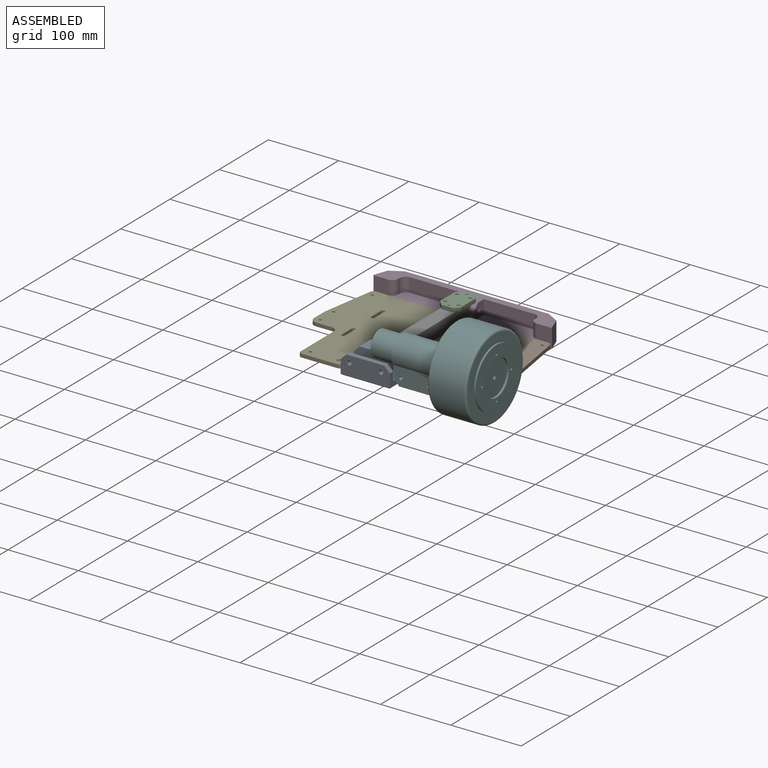
[diagram: assembled view]
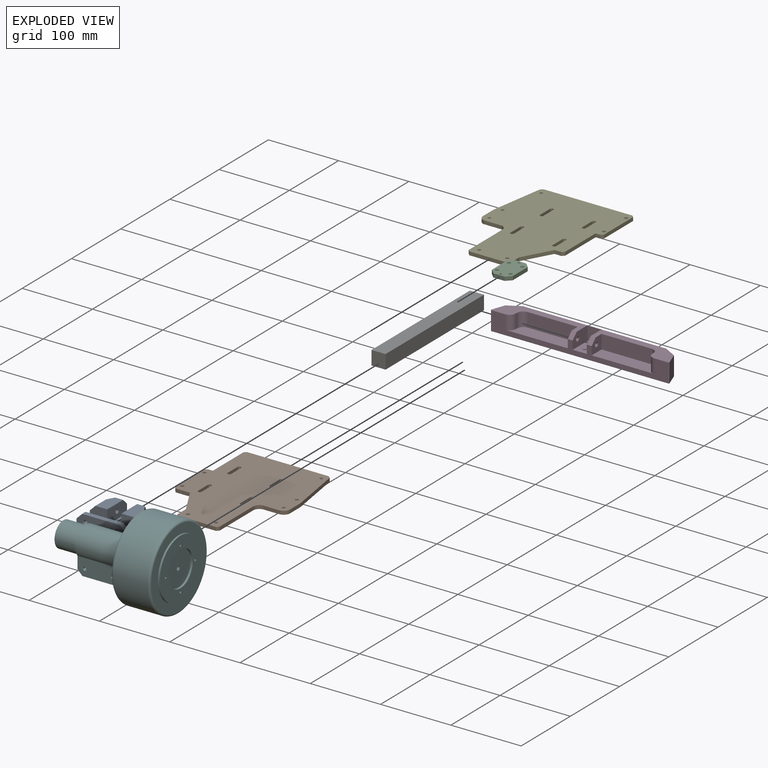
[diagram: exploded view]
GUIDED TOUR — FREECAD ASSEMBLY "POC_Motorisation"

This assembly has 7 components, labeled P0..P6 below (a component is one placed body or linked part; the same part can appear more than once), held together by 0 modeled joints plus 8 derived contact edges. A joint is a constraint between two components; its type names the relative motion it leaves free:
  CONTACT — a derived adjacency edge — the two components touch in the source model (clearance under 2% of the assembly's diagonal); it is measured from the geometry, not a modeled constraint.
Axis/direction vectors are unit vectors and 'through' points are millimeter coordinates, both in the assembly's world frame.

MATES
  1. CONTACT "contact_0_1": P0 <-> P1, contact direction (0.905, 0.403, 0.139) through (17.50, 50.00, -43.30) mm (derived from contact, not a modeled constraint)
  2. CONTACT "contact_0_4": P0 <-> P4, contact direction (-0.398, 0.915, -0.063) through (-17.50, 50.00, -43.30) mm (derived from contact, not a modeled constraint)
  3. CONTACT "contact_1_4": P1 <-> P4, contact direction (0.000, 0.000, 1.000) through (-5.00, 53.00, -37.30) mm (derived from contact, not a modeled constraint)
  4. CONTACT "contact_1_5": P1 <-> P5, contact direction (0.398, -0.915, 0.063) through (99.80, -13.25, -37.30) mm (derived from contact, not a modeled constraint)
  5. CONTACT "contact_2_3": P2 <-> P3, contact direction (0.000, 1.000, 0.000) through (8.92, 191.73, -20.76) mm (derived from contact, not a modeled constraint)
  6. CONTACT "contact_3_4": P3 <-> P4, contact direction (-0.905, -0.403, -0.139) through (-125.28, 180.00, -43.30) mm (derived from contact, not a modeled constraint)
  7. CONTACT "contact_3_6": P3 <-> P6, contact direction (0.000, -1.000, 0.000) through (10.00, 210.00, -37.30) mm (derived from contact, not a modeled constraint)
  8. CONTACT "contact_5_6": P5 <-> P6, contact direction (-1.000, 0.000, 0.000) through (9.15, 10.21, -15.90) mm (derived from contact, not a modeled constraint)

ASSEMBLY ORDER
  1. P6 — the base component [order verified]
  2. P3 [order verified]
  3. P0 [order verified]
  4. P2 [order verified]
  5. P1 [order verified]
  6. P5 [order verified]
  7. P4 [order verified]
Order-tag legend:
  [order verified] — this step's position reverses a verified removal order: the component was checked to insert without passing through the ones already placed.

Of the 7 components, 6 carry a construction recipe — the FreeCAD feature program (sketches with constraints, then the solid features that consume them) that regenerates the part from scratch, quoted from this document or from the linked companion document it references; the rest are supplied as boundary geometry only. The tour below walks the components in assembly order: each is shown spotlighted twice — in the assembled view, then in the exploded view, where a leader line traces a displaced component back to its assembled socket (components that stay in place when exploded have no leader line; saturated green if recipe-attached, orange if geometry-only; every other component desaturated gray) — followed by its recipe or geometry summary and the mates that hold it.
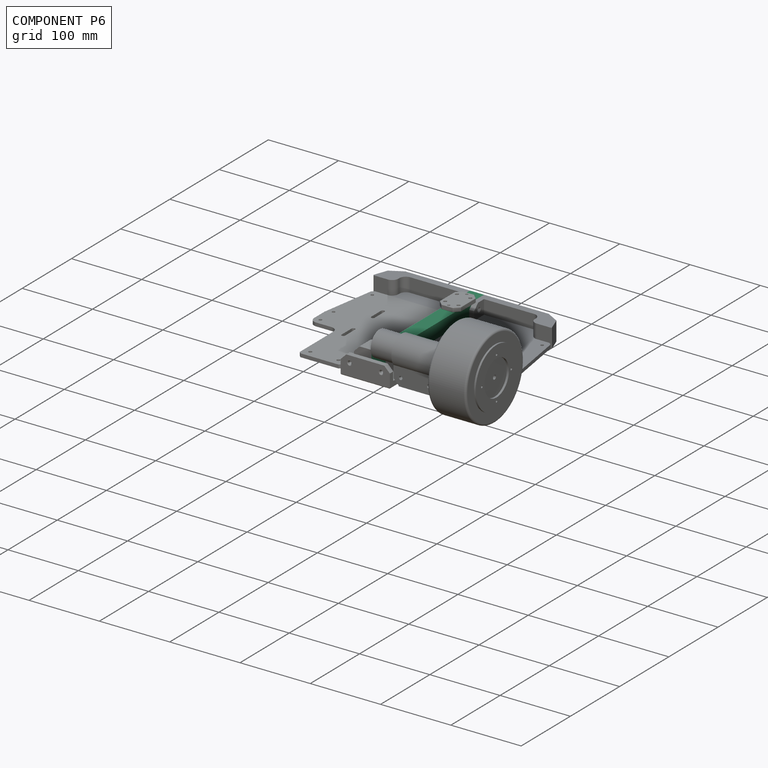
[diagram: component P6 — assembled]
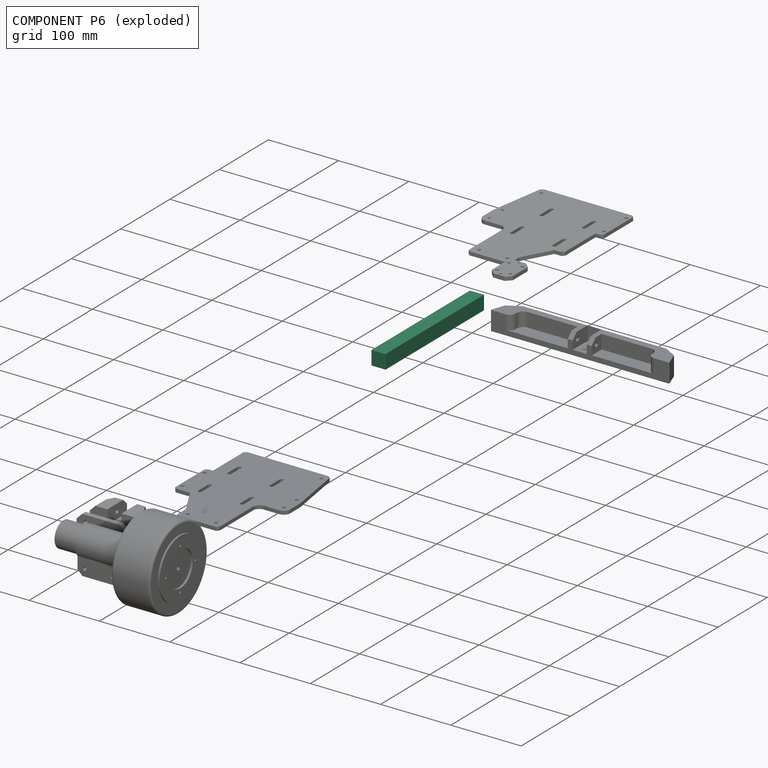
[diagram: component P6 — exploded]
COMPONENT P6 — recipe-attached ("Link002(2020)", modeled in this document).
Held by: resting contact with P3 (derived edge); resting contact with P5 (derived edge).
Construction recipe (the document's own serialized feature program — sketch geometry with constraints, then the solid features built on it; lengths are millimeters unless a unit is written):

FEATURE [Sketcher::SketchObject] Sketch028
  ArcFitTolerance = 1e-06
  AttachmentSupport = -> [YZ_Plane011]
  ExternalBSplineMaxDegree = 5
  ExternalBSplineTolerance = 0.0001
  FullyConstrained = true
  InternalTolerance = 1e-06
  InvalidShape = false
  MakeInternals = false
  MapMode = 5
  Placement = pos=(0,0,0) rot=(0.57735,0.57735,0.57735;2.0944rad)
  Support = -> [YZ_Plane011]
  TreeRank = 233
  ValidateShape = false
  sketch-geometry (5):
    g0: LineSegment StartX=-10 StartY=10 StartZ=0 EndX=-10 EndY=-10 EndZ=0
    g1: LineSegment StartX=-10 StartY=-10 StartZ=0 EndX=10 EndY=-10 EndZ=0
    g2: LineSegment StartX=10 StartY=-10 StartZ=0 EndX=10 EndY=10 EndZ=0
    g3: LineSegment StartX=10 StartY=10 StartZ=0 EndX=-10 EndY=10 EndZ=0
    g4: GeomPoint [constr] X=-1e-16 Y=2e-16 Z=0
  constraints (12):
    c: Coincident(g0,g1)
    c: Coincident(g1,g2)
    c: Coincident(g2,g3)
    c: Coincident(g3,g0)
    c: Horizontal(g1)
    c: Horizontal(g3)
    c: Vertical(g0)
    c: Vertical(g2)
    c: Symmetric(g1,g0,g4)
    c: Coincident(g4,g-1)
    c: Equal(g2,g3)
    c: DistanceX(g3,g3) = 20
FEATURE [PartDesign::Pad] Pad015
  AddSubType = 0
  AlongSketchNormal = false
  AutoTaperInnerAngle = true
  CheckUpToFaceLimits = true
  ClaimChildren = false
  Direction = (1,-2e-16,3e-16)
  Fit = 0
  FitJoin = 0
  InnerFit = 0
  InnerFitJoin = 0
  InvalidShape = false
  Length = 200
  Length2 = 10
  Linearize = true
  Midplane = true
  NewSolid = false
  Profile = -> Sketch028
  ReferenceAxis = -> Sketch028 [N_Axis]
  Refine = true
  Suppress = false
  TaperInnerAngle = 0
  TaperInnerAngleRev = 0
  TreeRank = 234
  Type = 0
  ValidateShape = true
  _ProfileBasedVersion = 1
FEATURE [PartDesign::Body] Body009  label="2020"
  AutoGroupSolids = false
  ClaimAllChildren = false
  ExportMode = 0
  Group = -> [Sketch028,Pad015]
  InvalidShape = false
  Origin = -> Origin012
  Placement = pos=(0,0,-27.3) rot=(0,0,1;0rad)
  Tip = -> Pad015
  TreeRank = 232
  ValidateShape = false
  _ExportChildren = -> [Pad015]
  _GroupVersion = 1
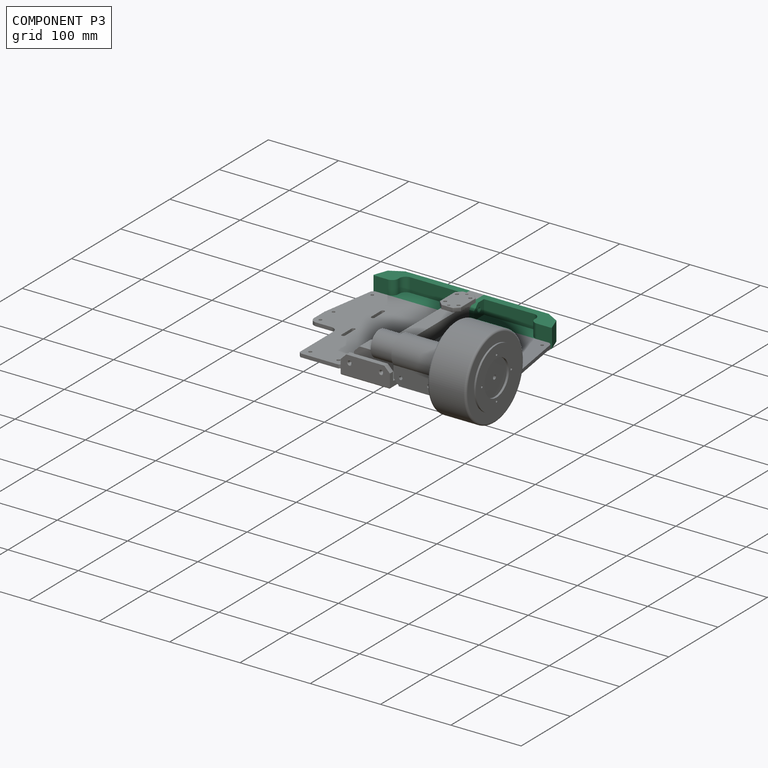
[diagram: component P3 — assembled]
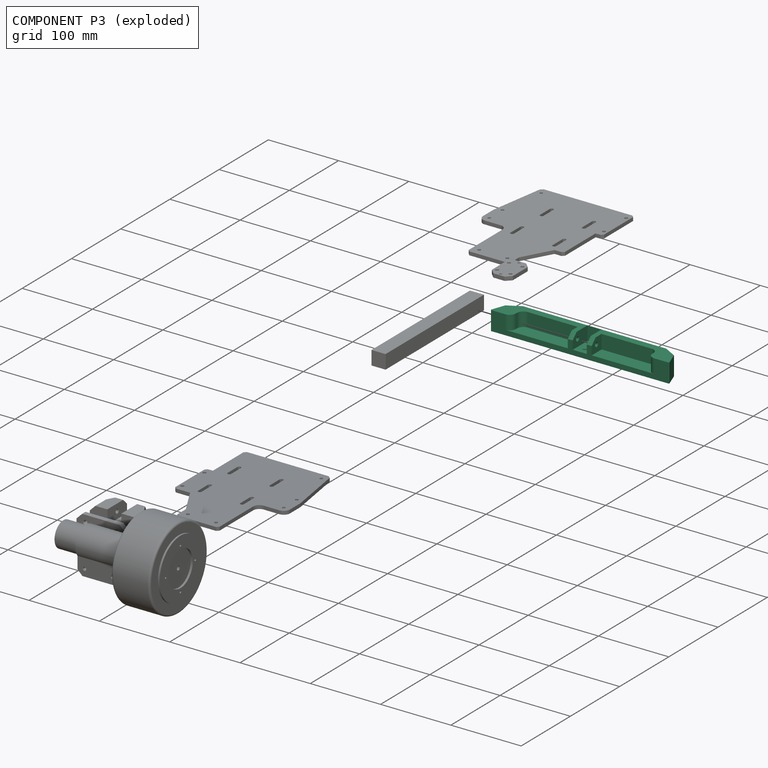
[diagram: component P3 — exploded]
COMPONENT P3 — recipe-attached ("Pare-Choc", modeled in this document).
Held by: resting contact with P2 (derived edge); resting contact with P4 (derived edge); resting contact with P6 (derived edge).
Construction recipe (the document's own serialized feature program — sketch geometry with constraints, then the solid features built on it; lengths are millimeters unless a unit is written):

FEATURE [Sketcher::SketchObject] Sketch031
  ArcFitTolerance = 1e-06
  AttachmentSupport = -> [XY_Plane014]
  ExternalBSplineMaxDegree = 5
  ExternalBSplineTolerance = 0.0001
  FullyConstrained = true
  InternalTolerance = 1e-06
  InvalidShape = false
  MakeInternals = false
  MapMode = 5
  Support = -> [XY_Plane014]
  TreeRank = 271
  ValidateShape = false
  sketch-geometry (6):
    g0: LineSegment StartX=0 StartY=0 StartZ=0 EndX=0 EndY=15 EndZ=0
    g1: LineSegment StartX=0 StartY=15 StartZ=0 EndX=-75 EndY=15 EndZ=0
    g2: LineSegment StartX=0 StartY=0 StartZ=0 EndX=0 EndY=-30 EndZ=0
    g3: LineSegment StartX=-75 StartY=15 StartZ=0 EndX=-120 EndY=-10 EndZ=0
    g4: LineSegment StartX=-120 StartY=-10 StartZ=0 EndX=-127.279 EndY=-30 EndZ=0
    g5: LineSegment StartX=0 StartY=-30 StartZ=0 EndX=-127.279 EndY=-30 EndZ=0
  constraints (17):
    c: Coincident(g0,g-1)
    c: PointOnObject(g0,g-2)
    c: Coincident(g1,g0)
    c: Horizontal(g1)
    c: Coincident(g2,g0)
    c: PointOnObject(g2,g-2)
    c: Coincident(g3,g1)
    c: Coincident(g4,g3)
    c: Coincident(g5,g2)
    c: Coincident(g5,g4)
    c: Horizontal(g5)
    c: DistanceY(g0,g0) = 15
    c: DistanceY(g2,g0) = 30
    c: DistanceY(g4,g4) = 20
    c: DistanceX(g1,g1) = 75
    c: DistanceX(g3) = -120
    c: Angle(g5,g4) = 1.22173
FEATURE [PartDesign::Pad] Pad017
  AddSubType = 0
  AlongSketchNormal = false
  AutoTaperInnerAngle = true
  CheckUpToFaceLimits = true
  ClaimChildren = false
  Direction = (0,0,1)
  Fit = 0
  FitJoin = 0
  InnerFit = 0
  InnerFitJoin = 0
  InvalidShape = false
  Length = 20
  Length2 = 7
  Linearize = true
  NewSolid = false
  Profile = -> Sketch031
  ReferenceAxis = -> Sketch031 [N_Axis]
  Refine = true
  Suppress = false
  TaperInnerAngle = 0
  TaperInnerAngleRev = 0
  TreeRank = 272
  Type = 4
  ValidateShape = true
  _ProfileBasedVersion = 1
FEATURE [Sketcher::SketchObject] Sketch032
  ArcFitTolerance = 1e-06
  AttachmentSupport = -> [Pad017]
  ExternalBSplineMaxDegree = 5
  ExternalBSplineTolerance = 0.0001
  ExternalGeometry = -> [Pad017]
  FullyConstrained = true
  InternalTolerance = 1e-06
  InvalidShape = false
  MakeInternals = false
  MapMode = 5
  Placement = pos=(0,0,20) rot=(0,0,1;0rad)
  Support = -> [Pad017]
  TreeRank = 273
  ValidateShape = false
  sketch-geometry (4):
    g0: LineSegment StartX=0 StartY=0 StartZ=0 EndX=-10 EndY=0 EndZ=0
    g1: LineSegment StartX=-10 StartY=0 StartZ=0 EndX=-10 EndY=-30 EndZ=0
    g2: LineSegment StartX=-10 StartY=-30 StartZ=0 EndX=0 EndY=-30 EndZ=0
    g3: LineSegment StartX=0 StartY=-30 StartZ=0 EndX=0 EndY=0 EndZ=0
  constraints (11):
    c: Coincident(g0,g1)
    c: Coincident(g1,g2)
    c: Coincident(g2,g3)
    c: Coincident(g3,g0)
    c: Horizontal(g0)
    c: Horizontal(g2)
    c: Vertical(g1)
    c: Vertical(g3)
    c: Coincident(g0,g-1)
    c: PointOnObject(g1,g-3)
    c: DistanceX(g0,g0) = 10
FEATURE [PartDesign::Pocket] Pocket013
  AddSubType = 1
  AlongSketchNormal = false
  AutoTaperInnerAngle = true
  BaseFeature = -> Pad017
  CheckUpToFaceLimits = true
  ClaimChildren = false
  Direction = (0,0,-1)
  Fit = 0
  FitJoin = 0
  InnerFit = 0
  InnerFitJoin = 0
  InvalidShape = false
  Length = 20
  Length2 = 10
  Linearize = true
  NewSolid = false
  Profile = -> Sketch032
  ReferenceAxis = -> Sketch032 [N_Axis]
  Refine = true
  Suppress = false
  TaperInnerAngle = 0
  TaperInnerAngleRev = 0
  TreeRank = 274
  Type = 0
  ValidateShape = true
  _ProfileBasedVersion = 1
  _Version = 1
FEATURE [Sketcher::SketchObject] Sketch033
  ArcFitTolerance = 1e-06
  AttachmentSupport = -> [Pocket013]
  ExternalBSplineMaxDegree = 5
  ExternalBSplineTolerance = 0.0001
  FullyConstrained = true
  InternalTolerance = 1e-06
  InvalidShape = false
  MakeInternals = false
  MapMode = 5
  Placement = pos=(0,0,0) rot=(0.57735,0.57735,0.57735;2.0944rad)
  Support = -> [Pocket013]
  TreeRank = 275
  ValidateShape = false
  sketch-geometry (2):
    g0: Circle CenterX=7.5 CenterY=0 CenterZ=0 NormalX=0 NormalY=0 NormalZ=1 AngleXU=0 Radius=4.25
    g1: Circle [constr] CenterX=7.5 CenterY=0 CenterZ=0 NormalX=0 NormalY=0 NormalZ=1 AngleXU=0 Radius=11
  constraints (5):
    c: PointOnObject(g0,g-1)
    c: Coincident(g1,g0)
    c: Diameter(g1) = 22
    c: Diameter(g0) = 8.5
    c: DistanceX(g-1,g0) = 7.5
FEATURE [PartDesign::Pocket] Pocket014
  AddSubType = 1
  AlongSketchNormal = false
  AutoTaperInnerAngle = true
  BaseFeature = -> Pocket013
  CheckUpToFaceLimits = true
  ClaimChildren = false
  Direction = (-1,0,0)
  Fit = 0
  FitJoin = 0
  InnerFit = 0
  InnerFitJoin = 0
  InvalidShape = false
  Length = 5
  Length2 = 10
  Linearize = true
  NewSolid = false
  Profile = -> Sketch033
  ReferenceAxis = -> Sketch033 [N_Axis]
  Refine = true
  Suppress = false
  TaperInnerAngle = 0
  TaperInnerAngleRev = 0
  TreeRank = 276
  Type = 1
  ValidateShape = true
  _ProfileBasedVersion = 1
  _Version = 1
FEATURE [PartDesign::Plane] DatumPlane001
  AttachmentOffset = pos=(0,0,-75) rot=(0,0,1;0rad)
  AttachmentSupport = -> [YZ_Plane014]
  InvalidShape = false
  Length = 45
  MapMode = 2
  MinimumLength = 10
  MinimumWidth = 10
  Placement = pos=(-75,1.67e-14,-1.67e-14) rot=(0.57735,0.57735,0.57735;2.0944rad)
  ResizeMode = 0
  Support = -> [YZ_Plane014]
  TreeRank = 277
  ValidateShape = false
  Width = 27
FEATURE [Sketcher::SketchObject] Sketch034
  ArcFitTolerance = 1e-06
  AttachmentSupport = -> [DatumPlane001]
  ExternalBSplineMaxDegree = 5
  ExternalBSplineTolerance = 0.0001
  ExternalGeometry = -> [Pocket014]
  FullyConstrained = true
  InternalTolerance = 1e-06
  InvalidShape = false
  MakeInternals = false
  MapMode = 5
  Placement = pos=(-75,1.67e-14,-1.67e-14) rot=(0.57735,0.57735,0.57735;2.0944rad)
  Support = -> [DatumPlane001]
  TreeRank = 278
  ValidateShape = false
  sketch-geometry (1):
    g0: Circle CenterX=7.5 CenterY=0 CenterZ=0 NormalX=0 NormalY=0 NormalZ=1 AngleXU=0 Radius=12
  constraints (2):
    c: Coincident(g0,g-3)
    c: Diameter(g0) = 24
FEATURE [PartDesign::Pocket] Pocket015
  AddSubType = 1
  AlongSketchNormal = false
  AutoTaperInnerAngle = true
  BaseFeature = -> Pocket014
  CheckUpToFaceLimits = true
  ClaimChildren = false
  Direction = (-1,1e-16,-1e-16)
  Fit = 0
  FitJoin = 0
  InnerFit = 0
  InnerFitJoin = 0
  InvalidShape = false
  Length = 55
  Length2 = 10
  Linearize = true
  NewSolid = false
  Profile = -> Sketch034
  ReferenceAxis = -> Sketch034 [N_Axis]
  Refine = true
  Suppress = false
  TaperInnerAngle = 0
  TaperInnerAngleRev = 0
  TreeRank = 279
  Type = 0
  ValidateShape = true
  _ProfileBasedVersion = 1
  _Version = 1
FEATURE [PartDesign::Fillet] Fillet003
  AddSubType = 0
  Base = -> Pocket015 [Edge4]
  BaseFeature = -> Pocket015
  InvalidShape = false
  NewSolid = false
  Radius = 7
  Refine = true
  SupportTransform = false
  Suppress = false
  TreeRank = 280
  UseAllEdges = false
  ValidateShape = true
FEATURE [PartDesign::Chamfer] Chamfer009
  AddSubType = 0
  Angle = 45
  Base = -> Fillet003 [Edge3]
  BaseFeature = -> Fillet003
  ChamferType = 1
  FlipDirection = false
  InvalidShape = false
  NewSolid = false
  Refine = true
  Size = 10
  Size2 = 15
  SupportTransform = false
  Suppress = false
  TreeRank = 281
  UseAllEdges = false
  ValidateShape = true
FEATURE [PartDesign::Chamfer] Chamfer010
  AddSubType = 0
  Angle = 45
  Base = -> Chamfer009 [Edge32]
  BaseFeature = -> Chamfer009
  ChamferType = 0
  FlipDirection = false
  InvalidShape = false
  NewSolid = false
  Refine = true
  Size = 1
  Size2 = 1
  SupportTransform = false
  Suppress = false
  TreeRank = 282
  UseAllEdges = false
  ValidateShape = true
FEATURE [Sketcher::SketchObject] Sketch035
  ArcFitTolerance = 1e-06
  AttachmentSupport = -> [Chamfer010]
  ExternalBSplineMaxDegree = 5
  ExternalBSplineTolerance = 0.0001
  ExternalGeometry = -> [Chamfer010]
  FullyConstrained = true
  InternalTolerance = 1e-06
  InvalidShape = false
  MakeInternals = false
  MapMode = 5
  Placement = pos=(0,0,20) rot=(0,0,1;0rad)
  Support = -> [Chamfer010]
  TreeRank = 283
  ValidateShape = false
  sketch-geometry (4):
    g0: LineSegment StartX=-17 StartY=-30 StartZ=0 EndX=-97 EndY=-30 EndZ=0
    g1: LineSegment StartX=-97 StartY=-30 StartZ=0 EndX=-97 EndY=-10 EndZ=0
    g2: LineSegment StartX=-97 StartY=-10 StartZ=0 EndX=-17 EndY=-10 EndZ=0
    g3: LineSegment StartX=-17 StartY=-10 StartZ=0 EndX=-17 EndY=-30 EndZ=0
  constraints (12):
    c: Coincident(g0,g1)
    c: Coincident(g1,g2)
    c: Coincident(g2,g3)
    c: Coincident(g3,g0)
    c: Horizontal(g0)
    c: Horizontal(g2)
    c: Vertical(g1)
    c: Vertical(g3)
    c: PointOnObject(g0,g-3)
    c: DistanceX(g0,g-3) = 7
    c: DistanceY(g3,g3) = 20
    c: DistanceX(g0,g0) = 80
FEATURE [PartDesign::Pocket] Pocket016
  AddSubType = 1
  AlongSketchNormal = false
  AutoTaperInnerAngle = true
  BaseFeature = -> Chamfer010
  CheckUpToFaceLimits = true
  ClaimChildren = false
  Direction = (0,0,-1)
  Fit = 0
  FitJoin = 0
  InnerFit = 0
  InnerFitJoin = 0
  InvalidShape = false
  Length = 20
  Length2 = 10
  Linearize = true
  NewSolid = false
  Profile = -> Sketch035
  ReferenceAxis = -> Sketch035 [N_Axis]
  Refine = true
  Suppress = false
  TaperInnerAngle = 0
  TaperInnerAngleRev = 0
  TreeRank = 284
  Type = 0
  ValidateShape = true
  _ProfileBasedVersion = 1
  _Version = 1
FEATURE [Sketcher::SketchObject] Sketch036
  ArcFitTolerance = 1e-06
  AttachmentSupport = -> [Pocket016]
  ExternalBSplineMaxDegree = 5
  ExternalBSplineTolerance = 0.0001
  ExternalGeometry = -> [Pocket016]
  FullyConstrained = true
  InternalTolerance = 1e-06
  InvalidShape = false
  MakeInternals = false
  MapMode = 5
  Placement = pos=(-17,0,0) rot=(0.57735,-0.57735,-0.57735;2.0944rad)
  Support = -> [Pocket016]
  TreeRank = 285
  ValidateShape = false
  sketch-geometry (1):
    g0: Circle CenterX=20 CenterY=10 CenterZ=0 NormalX=0 NormalY=0 NormalZ=1 AngleXU=0 Radius=2.2
  constraints (2):
    c: Diameter(g0) = 4.4
    c: Symmetric(g-4,g-3,g0)
FEATURE [PartDesign::Pocket] Pocket017
  AddSubType = 1
  AlongSketchNormal = false
  AutoTaperInnerAngle = true
  BaseFeature = -> Pocket016
  CheckUpToFaceLimits = true
  ClaimChildren = false
  Direction = (1,0,0)
  Fit = 0
  FitJoin = 0
  InnerFit = 0
  InnerFitJoin = 0
  InvalidShape = false
  Length = 10
  Length2 = 10
  Linearize = true
  NewSolid = false
  Profile = -> Sketch036
  ReferenceAxis = -> Sketch036 [N_Axis]
  Refine = true
  Suppress = false
  TaperInnerAngle = 0
  TaperInnerAngleRev = 0
  TreeRank = 286
  Type = 0
  ValidateShape = true
  _ProfileBasedVersion = 1
  _Version = 1
FEATURE [PartDesign::Fillet] Fillet004
  AddSubType = 0
  Base = -> Pocket017 [Edge42,Edge11]
  BaseFeature = -> Pocket017
  InvalidShape = false
  NewSolid = false
  Radius = 9
  Refine = true
  SupportTransform = false
  Suppress = false
  TreeRank = 287
  UseAllEdges = false
  ValidateShape = true
FEATURE [PartDesign::Mirrored] Mirrored003
  AddSubType = 0
  BaseFeature = -> Fillet004
  CopyShape = false
  InvalidShape = false
  MirrorPlane = -> YZ_Plane014
  NewSolid = false
  OriginalSubs = -> [Pad017,Pocket013,Pocket014,Pocket015,Fillet003,Chamfer009,Chamfer010,Pocket016,Pocket017,Fillet004]
  Originals = -> [Pad017,Pocket013,Pocket014,Pocket015,Fillet003,Chamfer009,Chamfer010,Pocket016,Pocket017,Fillet004]
  ParallelTransform = true
  Refine = true
  SubTransform = true
  Suppress = false
  TreeRank = 288
  ValidateShape = true
  _Version = 3
FEATURE [PartDesign::Chamfer] Chamfer011
  AddSubType = 0
  Angle = 45
  Base = -> Mirrored003 [Edge12,Edge52]
  BaseFeature = -> Mirrored003
  ChamferType = 0
  FlipDirection = false
  InvalidShape = false
  NewSolid = false
  Refine = true
  Size = 8
  Size2 = 1
  SupportTransform = false
  Suppress = false
  TreeRank = 289
  UseAllEdges = false
  ValidateShape = true
FEATURE [Sketcher::SketchObject] Sketch037
  ArcFitTolerance = 1e-06
  AttachmentSupport = -> [Chamfer011]
  ExternalBSplineMaxDegree = 5
  ExternalBSplineTolerance = 0.0001
  ExternalGeometry = -> [Chamfer011]
  FullyConstrained = true
  InternalTolerance = 1e-06
  InvalidShape = false
  MakeInternals = false
  MapMode = 5
  Placement = pos=(0,0,-7) rot=(1,0,0;3.14159rad)
  Support = -> [Chamfer011]
  TreeRank = 290
  ValidateShape = false
  sketch-geometry (1):
    g0: Circle CenterX=0 CenterY=20 CenterZ=0 NormalX=0 NormalY=0 NormalZ=1 AngleXU=0 Radius=2.2
  constraints (3):
    c: PointOnObject(g0,g-2)
    c: Diameter(g0) = 4.4
    c: DistanceY(g0,g-3) = 10
FEATURE [PartDesign::Pocket] Pocket018
  AddSubType = 1
  AlongSketchNormal = false
  AutoTaperInnerAngle = true
  BaseFeature = -> Chamfer011
  CheckUpToFaceLimits = true
  ClaimChildren = false
  Direction = (0,0,1)
  Fit = 0
  FitJoin = 0
  InnerFit = 0
  InnerFitJoin = 0
  InvalidShape = false
  Length = 5
  Length2 = 10
  Linearize = true
  NewSolid = false
  Profile = -> Sketch037
  ReferenceAxis = -> Sketch037 [N_Axis]
  Refine = true
  Suppress = false
  TaperInnerAngle = 0
  TaperInnerAngleRev = 0
  TreeRank = 291
  Type = 1
  ValidateShape = true
  _ProfileBasedVersion = 1
  _Version = 1
FEATURE [PartDesign::Chamfer] Chamfer012
  AddSubType = 0
  Angle = 45
  Base = -> Pocket018 [Edge89,Edge95,Edge59,Edge84,Edge25,Edge17,Edge103,Edge105]
  BaseFeature = -> Pocket018
  ChamferType = 0
  FlipDirection = false
  InvalidShape = false
  NewSolid = false
  Refine = true
  Size = 1
  Size2 = 1
  SupportTransform = false
  Suppress = false
  TreeRank = 292
  UseAllEdges = false
  ValidateShape = true
FEATURE [PartDesign::Body] Body012  label="Pare-Choc"
  AutoGroupSolids = false
  ClaimAllChildren = false
  ExportMode = 0
  Group = -> [Sketch031,Pad017,Sketch032,Pocket013,Sketch033,Pocket014,DatumPlane001,Sketch034,Pocket015,Fillet003,Chamfer009,Chamfer010,Sketch035,Pocket016,Sketch036,Pocket017,Fillet004,Mirrored003,Chamfer011,Sketch037,Pocket018,Chamfer012]
  InvalidShape = false
  Origin = -> Origin015
  Placement = pos=(0,210,-37.3) rot=(0,0,1;0rad)
  Tip = -> Chamfer012
  TreeRank = 270
  ValidateShape = false
  _ExportChildren = -> [Pad017,Pocket013,Pocket014,DatumPlane001,Pocket015,Fillet003,Chamfer009,Chamfer010,Pocket016,Pocket017,Fillet004,Mirrored003,Chamfer011,Pocket018,Chamfer012]
  _GroupVersion = 1
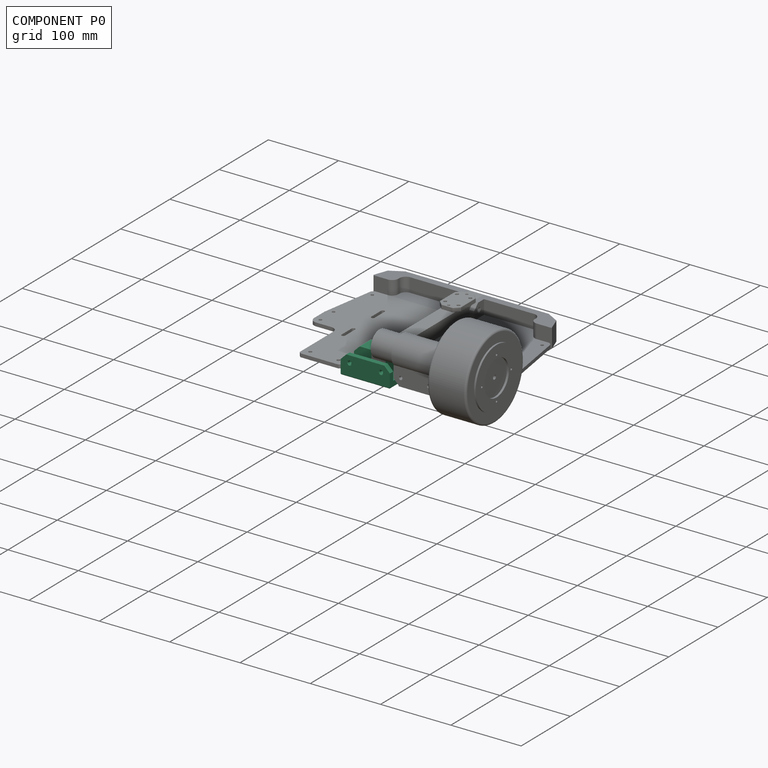
[diagram: component P0 — assembled]
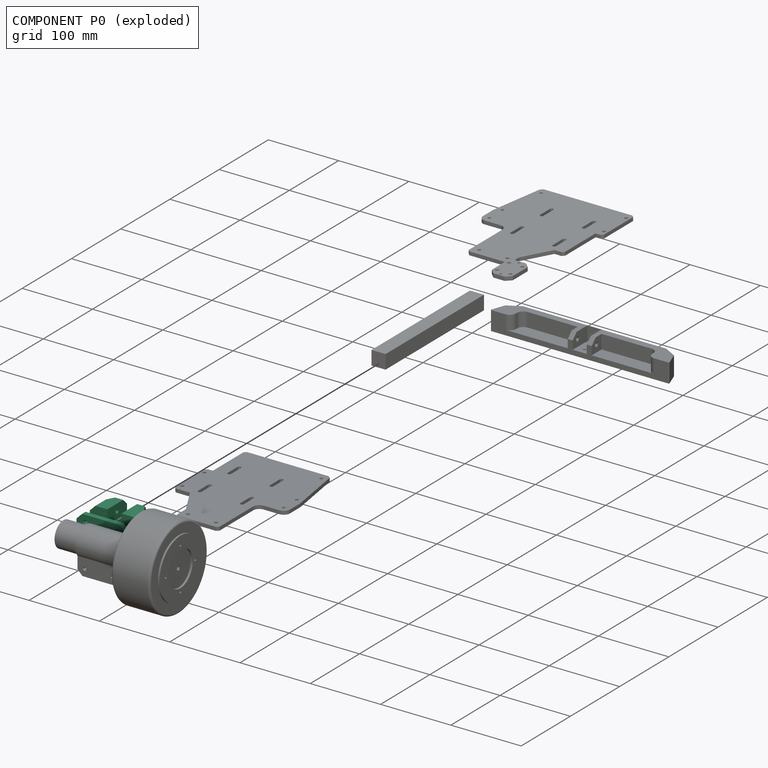
[diagram: component P0 — exploded]
COMPONENT P0 — recipe-attached ("Tsupport", modeled in this document).
Held by: resting contact with P1 (derived edge); resting contact with P4 (derived edge).
Construction recipe (the document's own serialized feature program — sketch geometry with constraints, then the solid features built on it; lengths are millimeters unless a unit is written):

FEATURE [Sketcher::SketchObject] Sketch022
  ArcFitTolerance = 1e-06
  AttachmentSupport = -> [YZ_Plane009]
  ExternalBSplineMaxDegree = 5
  ExternalBSplineTolerance = 0.0001
  FullyConstrained = true
  InternalTolerance = 1e-06
  InvalidShape = false
  MakeInternals = false
  MapMode = 5
  Placement = pos=(0,0,0) rot=(0.57735,0.57735,0.57735;2.0944rad)
  Support = -> [YZ_Plane009]
  TreeRank = 168
  ValidateShape = false
  sketch-geometry (16):
    g0: LineSegment StartX=-35 StartY=17 StartZ=0 EndX=-35 EndY=-17 EndZ=0
    g1: LineSegment StartX=-35 StartY=17 StartZ=0 EndX=35 EndY=17 EndZ=0
    g2: LineSegment StartX=35 StartY=17 StartZ=0 EndX=35 EndY=-17 EndZ=0
    g3: LineSegment StartX=35 StartY=-17 StartZ=0 EndX=17 EndY=-50 EndZ=0
    g4: LineSegment StartX=17 StartY=-50 StartZ=0 EndX=-17 EndY=-50 EndZ=0
    g5: LineSegment StartX=-17 StartY=-50 StartZ=0 EndX=-35 EndY=-17 EndZ=0
    g6: LineSegment [constr] StartX=-35 StartY=10 StartZ=0 EndX=-35 EndY=-10 EndZ=0
    g7: LineSegment [constr] StartX=-35 StartY=-10 StartZ=0 EndX=35 EndY=-10 EndZ=0
    g8: LineSegment [constr] StartX=35 StartY=-10 StartZ=0 EndX=35 EndY=10 EndZ=0
    g9: LineSegment [constr] StartX=35 StartY=10 StartZ=0 EndX=-35 EndY=10 EndZ=0
    g10: GeomPoint [constr] X=0 Y=0 Z=0
    g11: LineSegment [constr] StartX=-10 StartY=-50 StartZ=0 EndX=-10 EndY=-10 EndZ=0
    g12: LineSegment [constr] StartX=-10 StartY=-10 StartZ=0 EndX=10 EndY=-10 EndZ=0
    g13: LineSegment [constr] StartX=10 StartY=-10 StartZ=0 EndX=10 EndY=-50 EndZ=0
    g14: LineSegment [constr] StartX=10 StartY=-50 StartZ=0 EndX=-10 EndY=-50 EndZ=0
    g15: GeomPoint [constr] X=0 Y=-30 Z=0
  constraints (41):
    c: Vertical(g0)
    c: Coincident(g0,g1)
    c: Horizontal(g1)
    c: Coincident(g1,g2)
    c: Vertical(g2)
    c: Coincident(g2,g3)
    c: Coincident(g3,g4)
    c: Coincident(g4,g5)
    c: Coincident(g5,g0)
    c: Symmetric(g0,g2,g-2)
    c: Symmetric(g3,g4,g-2)
    c: Coincident(g6,g7)
    c: Coincident(g7,g8)
    c: Coincident(g8,g9)
    c: Coincident(g9,g6)
    c: Horizontal(g7)
    c: Horizontal(g9)
    c: Vertical(g6)
    c: Vertical(g8)
    c: Symmetric(g7,g6,g10)
    c: Coincident(g10,g-1)
    c: PointOnObject(g7,g2)
    c: Coincident(g11,g12)
    c: Coincident(g12,g13)
    c: Coincident(g13,g14)
    c: Coincident(g14,g11)
    c: Horizontal(g12)
    c: Horizontal(g14)
    c: Vertical(g11)
    c: Vertical(g13)
    c: Symmetric(g12,g11,g15)
    c: PointOnObject(g15,g-2)
    c: PointOnObject(g12,g7)
    c: PointOnObject(g13,g4)
    c: DistanceX(g11,g12) = 20
    c: DistanceY(g7,g8) = 20
    c: DistanceY(g8,g1) = 7
    c: DistanceX(g10,g8) = 35
    c: DistanceY(g2,g7) = 7
    c: DistanceX(g13,g3) = 7
    c: DistanceY(g13,g12) = 40
FEATURE [PartDesign::Pad] Pad014
  AddSubType = 0
  AlongSketchNormal = false
  AutoTaperInnerAngle = true
  CheckUpToFaceLimits = true
  ClaimChildren = false
  Direction = (1,-2e-16,3e-16)
  Fit = 0
  FitJoin = 0
  InnerFit = 0
  InnerFitJoin = 0
  InvalidShape = false
  Length = 28
  Length2 = 10
  Linearize = true
  NewSolid = false
  Profile = -> Sketch022
  ReferenceAxis = -> Sketch022 [N_Axis]
  Refine = true
  Suppress = false
  TaperInnerAngle = 0
  TaperInnerAngleRev = 0
  TreeRank = 169
  Type = 0
  ValidateShape = true
  _ProfileBasedVersion = 1
FEATURE [Sketcher::SketchObject] Sketch023
  ArcFitTolerance = 1e-06
  AttachmentSupport = -> [YZ_Plane009]
  ExternalBSplineMaxDegree = 5
  ExternalBSplineTolerance = 0.0001
  ExternalGeometry = -> [Pad014]
  FullyConstrained = true
  InternalTolerance = 1e-06
  InvalidShape = false
  MakeInternals = false
  MapMode = 5
  Placement = pos=(0,0,0) rot=(0.57735,0.57735,0.57735;2.0944rad)
  Support = -> [YZ_Plane009]
  TreeRank = 170
  ValidateShape = false
  sketch-geometry (18):
    g0: LineSegment [constr] StartX=35 StartY=-10 StartZ=0 EndX=35 EndY=10 EndZ=0
    g1: LineSegment [constr] StartX=35 StartY=10 StartZ=0 EndX=-35 EndY=10 EndZ=0
    g2: LineSegment [constr] StartX=-35 StartY=10 StartZ=0 EndX=-35 EndY=-10 EndZ=0
    g3: LineSegment [constr] StartX=-35 StartY=-10 StartZ=0 EndX=35 EndY=-10 EndZ=0
    g4: GeomPoint [constr] X=0 Y=0 Z=0
    g5: LineSegment [constr] StartX=10 StartY=-50 StartZ=0 EndX=10 EndY=-10 EndZ=0
    g6: LineSegment [constr] StartX=10 StartY=-10 StartZ=0 EndX=-10 EndY=-10 EndZ=0
    g7: LineSegment [constr] StartX=-10 StartY=-10 StartZ=0 EndX=-10 EndY=-50 EndZ=0
    g8: LineSegment [constr] StartX=-10 StartY=-50 StartZ=0 EndX=10 EndY=-50 EndZ=0
    g9: GeomPoint [constr] X=0 Y=-30 Z=0
    g10: LineSegment StartX=-35 StartY=10 StartZ=0 EndX=35 EndY=10 EndZ=0
    g11: LineSegment StartX=35 StartY=-10 StartZ=0 EndX=35 EndY=10 EndZ=0
    g12: LineSegment StartX=35 StartY=-10 StartZ=0 EndX=10 EndY=-10 EndZ=0
    g13: LineSegment StartX=10 StartY=-10 StartZ=0 EndX=10 EndY=-50 EndZ=0
    g14: LineSegment StartX=10 StartY=-50 StartZ=0 EndX=-10 EndY=-50 EndZ=0
    g15: LineSegment StartX=-10 StartY=-50 StartZ=0 EndX=-10 EndY=-10 EndZ=0
    g16: LineSegment StartX=-10 StartY=-10 StartZ=0 EndX=-35 EndY=-10 EndZ=0
    g17: LineSegment StartX=-35 StartY=-10 StartZ=0 EndX=-35 EndY=10 EndZ=0
  constraints (41):
    c: Coincident(g0,g1)
    c: Coincident(g1,g2)
    c: Coincident(g2,g3)
    c: Coincident(g3,g0)
    c: Horizontal(g1)
    c: Horizontal(g3)
    c: Vertical(g0)
    c: Vertical(g2)
    c: Symmetric(g1,g0,g4)
    c: Coincident(g4,g-1)
    c: Coincident(g5,g6)
    c: Coincident(g6,g7)
    c: Coincident(g7,g8)
    c: Coincident(g8,g5)
    c: Horizontal(g6)
    c: Horizontal(g8)
    c: Vertical(g5)
    c: Vertical(g7)
    c: Symmetric(g6,g5,g9)
    c: PointOnObject(g9,g-2)
    c: PointOnObject(g6,g3)
    c: PointOnObject(g1,g-3)
    c: PointOnObject(g7,g-4)
    c: Equal(g8,g2)
    c: DistanceY(g2,g1) = 20
    c: Coincident(g10,g1)
    c: Coincident(g10,g0)
    c: Coincident(g11,g0)
    c: Coincident(g11,g10)
    c: Coincident(g12,g11)
    c: Coincident(g12,g5)
    c: Coincident(g12,g13)
    c: Coincident(g13,g5)
    c: Coincident(g13,g14)
    c: Coincident(g14,g7)
    c: Coincident(g14,g15)
    c: Coincident(g15,g6)
    c: Coincident(g15,g16)
    c: Coincident(g16,g2)
    c: Coincident(g16,g17)
    c: Coincident(g17,g10)
FEATURE [PartDesign::Pocket] Pocket008
  AddSubType = 1
  AlongSketchNormal = false
  AutoTaperInnerAngle = true
  BaseFeature = -> Pad014
  CheckUpToFaceLimits = true
  ClaimChildren = false
  Direction = (-1,2e-16,-3e-16)
  Fit = 0
  FitJoin = 0
  InnerFit = 0
  InnerFitJoin = 0
  InvalidShape = false
  Length = 20
  Length2 = 10
  Linearize = true
  NewSolid = false
  Profile = -> Sketch023
  ReferenceAxis = -> Sketch023 [N_Axis]
  Refine = true
  Reversed = true
  Suppress = false
  TaperInnerAngle = 0
  TaperInnerAngleRev = 0
  TreeRank = 171
  Type = 0
  ValidateShape = true
  _ProfileBasedVersion = 1
  _Version = 1
FEATURE [Sketcher::SketchObject] Sketch024
  ArcFitTolerance = 1e-06
  AttachmentSupport = -> [YZ_Plane009]
  ExternalBSplineMaxDegree = 5
  ExternalBSplineTolerance = 0.0001
  FullyConstrained = true
  InternalTolerance = 1e-06
  InvalidShape = false
  MakeInternals = false
  MapMode = 5
  Placement = pos=(0,0,0) rot=(0.57735,0.57735,0.57735;2.0944rad)
  Support = -> [YZ_Plane009]
  TreeRank = 172
  ValidateShape = false
  sketch-geometry (3):
    g0: Circle CenterX=-22.5 CenterY=0 CenterZ=0 NormalX=0 NormalY=0 NormalZ=1 AngleXU=0 Radius=2.2
    g1: Circle CenterX=22.5 CenterY=0 CenterZ=0 NormalX=0 NormalY=0 NormalZ=1 AngleXU=0 Radius=2.2
    g2: Circle CenterX=0 CenterY=-40 CenterZ=0 NormalX=0 NormalY=0 NormalZ=1 AngleXU=0 Radius=2.2
  constraints (8):
    c: PointOnObject(g0,g-1)
    c: Equal(g1,g0)
    c: PointOnObject(g2,g-2)
    c: Equal(g2,g1)
    c: Diameter(g1) = 4.4
    c: Symmetric(g0,g1,g-1)
    c: DistanceX(g0,g1) = 45
    c: DistanceY(g2,g-1) = 40
FEATURE [PartDesign::Pocket] Pocket009
  AddSubType = 1
  AlongSketchNormal = false
  AutoTaperInnerAngle = true
  BaseFeature = -> Pocket008
  CheckUpToFaceLimits = true
  ClaimChildren = false
  Direction = (-1,2e-16,-3e-16)
  Fit = 0
  FitJoin = 0
  InnerFit = 0
  InnerFitJoin = 0
  InvalidShape = false
  Length = 5
  Length2 = 10
  Linearize = true
  NewSolid = false
  Profile = -> Sketch024
  ReferenceAxis = -> Sketch024 [N_Axis]
  Refine = true
  Reversed = true
  Suppress = false
  TaperInnerAngle = 0
  TaperInnerAngleRev = 0
  TreeRank = 173
  Type = 1
  ValidateShape = true
  _ProfileBasedVersion = 1
  _Version = 1
FEATURE [Sketcher::SketchObject] Sketch025
  ArcFitTolerance = 1e-06
  AttachmentSupport = -> [XY_Plane009]
  ExternalBSplineMaxDegree = 5
  ExternalBSplineTolerance = 0.0001
  FullyConstrained = true
  InternalTolerance = 1e-06
  InvalidShape = false
  MakeInternals = false
  MapMode = 5
  Support = -> [XY_Plane009]
  TreeRank = 174
  ValidateShape = false
  sketch-geometry (2):
    g0: Circle CenterX=10 CenterY=22.5 CenterZ=0 NormalX=0 NormalY=0 NormalZ=1 AngleXU=0 Radius=2.25
    g1: Circle CenterX=10 CenterY=-22.5 CenterZ=0 NormalX=0 NormalY=0 NormalZ=1 AngleXU=0 Radius=2.25
  constraints (5):
    c: Symmetric(g0,g1,g-1)
    c: Equal(g0,g1)
    c: Diameter(g0) = 4.5
    c: DistanceY(g1,g0) = 45
    c: DistanceX(g-1,g1) = 10
FEATURE [PartDesign::Pocket] Pocket010
  AddSubType = 1
  AlongSketchNormal = false
  AutoTaperInnerAngle = true
  BaseFeature = -> Pocket009
  CheckUpToFaceLimits = true
  ClaimChildren = false
  Direction = (0,0,-1)
  Fit = 0
  FitJoin = 0
  InnerFit = 0
  InnerFitJoin = 0
  InvalidShape = false
  Length = 5
  Length2 = 10
  Linearize = true
  NewSolid = false
  Profile = -> Sketch025
  ReferenceAxis = -> Sketch025 [N_Axis]
  Refine = true
  Reversed = true
  Suppress = false
  TaperInnerAngle = 0
  TaperInnerAngleRev = 0
  TreeRank = 175
  Type = 1
  ValidateShape = true
  _ProfileBasedVersion = 1
  _Version = 1
FEATURE [Sketcher::SketchObject] Sketch026
  ArcFitTolerance = 1e-06
  AttachmentSupport = -> [XZ_Plane009]
  ExternalBSplineMaxDegree = 5
  ExternalBSplineTolerance = 0.0001
  FullyConstrained = true
  InternalTolerance = 1e-06
  InvalidShape = false
  MakeInternals = false
  MapMode = 5
  Placement = pos=(0,0,0) rot=(1,0,0;1.5708rad)
  Support = -> [XZ_Plane009]
  TreeRank = 176
  ValidateShape = false
  sketch-geometry (1):
    g0: Circle CenterX=10 CenterY=-30 CenterZ=0 NormalX=0 NormalY=0 NormalZ=1 AngleXU=0 Radius=2.25
  constraints (3):
    c: Diameter(g0) = 4.5
    c: DistanceX(g-1,g0) = 10
    c: DistanceY(g0,g-1) = 30
FEATURE [PartDesign::Pocket] Pocket011
  AddSubType = 1
  AlongSketchNormal = false
  AutoTaperInnerAngle = true
  BaseFeature = -> Pocket010
  CheckUpToFaceLimits = true
  ClaimChildren = false
  Direction = (0,1,-2e-16)
  Fit = 0
  FitJoin = 0
  InnerFit = 0
  InnerFitJoin = 0
  InvalidShape = false
  Length = 5
  Length2 = 10
  Linearize = true
  Midplane = true
  NewSolid = false
  Profile = -> Sketch026
  ReferenceAxis = -> Sketch026 [N_Axis]
  Refine = true
  Suppress = false
  TaperInnerAngle = 0
  TaperInnerAngleRev = 0
  TreeRank = 177
  Type = 1
  ValidateShape = true
  _ProfileBasedVersion = 1
  _Version = 1
FEATURE [PartDesign::Plane] DatumPlane
  AttachmentOffset = pos=(0,0,-7) rot=(0,0,1;0rad)
  AttachmentSupport = -> [Pocket011]
  InvalidShape = false
  Length = 28
  MapMode = 5
  MinimumLength = 10
  MinimumWidth = 10
  Placement = pos=(3.8e-15,17,-3.8e-15) rot=(1,0,0;1.5708rad)
  ResizeMode = 0
  Support = -> [Pocket011]
  TreeRank = 178
  ValidateShape = false
  Width = 67
FEATURE [Sketcher::SketchObject] Sketch027
  ArcFitTolerance = 1e-06
  AttachmentSupport = -> [DatumPlane]
  ExternalBSplineMaxDegree = 5
  ExternalBSplineTolerance = 0.0001
  ExternalGeometry = -> [Pocket011]
  FullyConstrained = true
  InternalTolerance = 1e-06
  InvalidShape = false
  MakeInternals = false
  MapMode = 5
  Placement = pos=(3.8e-15,17,-3.8e-15) rot=(1,0,0;1.5708rad)
  Support = -> [DatumPlane]
  TreeRank = 179
  ValidateShape = false
  sketch-geometry (1):
    g0: Circle CenterX=10 CenterY=-30 CenterZ=0 NormalX=0 NormalY=0 NormalZ=1 AngleXU=0 Radius=4.5
  constraints (2):
    c: Coincident(g0,g-3)
    c: Diameter(g0) = 9
FEATURE [PartDesign::Pocket] Pocket012
  AddSubType = 1
  AlongSketchNormal = false
  AutoTaperInnerAngle = true
  BaseFeature = -> Pocket011
  CheckUpToFaceLimits = true
  ClaimChildren = false
  Direction = (2e-16,1,-2e-16)
  Fit = 0
  FitJoin = 0
  InnerFit = 0
  InnerFitJoin = 0
  InvalidShape = false
  Length = 5
  Length2 = 10
  Linearize = true
  NewSolid = false
  Profile = -> Sketch027
  ReferenceAxis = -> Sketch027 [N_Axis]
  Refine = true
  Suppress = false
  TaperInnerAngle = 0
  TaperInnerAngleRev = 0
  TreeRank = 180
  Type = 1
  ValidateShape = true
  _ProfileBasedVersion = 1
  _Version = 1
FEATURE [PartDesign::Mirrored] Mirrored002
  AddSubType = 0
  BaseFeature = -> Pocket012
  CopyShape = false
  InvalidShape = false
  MirrorPlane = -> XZ_Plane009
  NewSolid = false
  OriginalSubs = -> [Pocket012]
  Originals = -> [Pocket012]
  ParallelTransform = true
  Refine = true
  SubTransform = true
  Suppress = false
  TreeRank = 181
  ValidateShape = true
  _Version = 3
FEATURE [PartDesign::Chamfer] Chamfer005
  AddSubType = 0
  Angle = 45
  Base = -> Mirrored002 [Edge1,Edge10,Edge28,Edge55,Edge44,Edge5]
  BaseFeature = -> Mirrored002
  ChamferType = 0
  FlipDirection = false
  InvalidShape = false
  NewSolid = false
  Refine = true
  Size = 8
  Size2 = 1
  SupportTransform = false
  Suppress = false
  TreeRank = 182
  UseAllEdges = false
  ValidateShape = true
FEATURE [PartDesign::Chamfer] Chamfer006
  AddSubType = 0
  Angle = 45
  Base = -> Chamfer005 [Face7,Edge31,Edge32,Edge15,Edge14,Edge66,Edge62,Edge82,Edge85,Edge77,Edge48,Edge25,Edge24,Edge26]
  BaseFeature = -> Chamfer005
  ChamferType = 0
  FlipDirection = false
  InvalidShape = false
  NewSolid = false
  Refine = true
  Size = 1
  Size2 = 1
  SupportTransform = false
  Suppress = false
  TreeRank = 183
  UseAllEdges = false
  ValidateShape = true
FEATURE [PartDesign::Body] Body008  label="Tsupport"
  AutoGroupSolids = false
  ClaimAllChildren = false
  ExportMode = 0
  Group = -> [Sketch022,Pad014,Sketch023,Pocket008,Sketch024,Pocket009,Sketch025,Pocket010,Sketch026,Pocket011,DatumPlane,Sketch027,Pocket012,Mirrored002,Chamfer005,Chamfer006]
  InvalidShape = false
  Origin = -> Origin010
  Placement = pos=(-2.1e-15,4e-16,-17.3) rot=(0.57735,0.57735,-0.57735;2.0944rad)
  Tip = -> Chamfer006
  TreeRank = 221
  ValidateShape = false
  _ExportChildren = -> [Pad014,Pocket008,Pocket009,Pocket010,Pocket011,DatumPlane,Pocket012,Mirrored002,Chamfer005,Chamfer006]
  _GroupVersion = 1
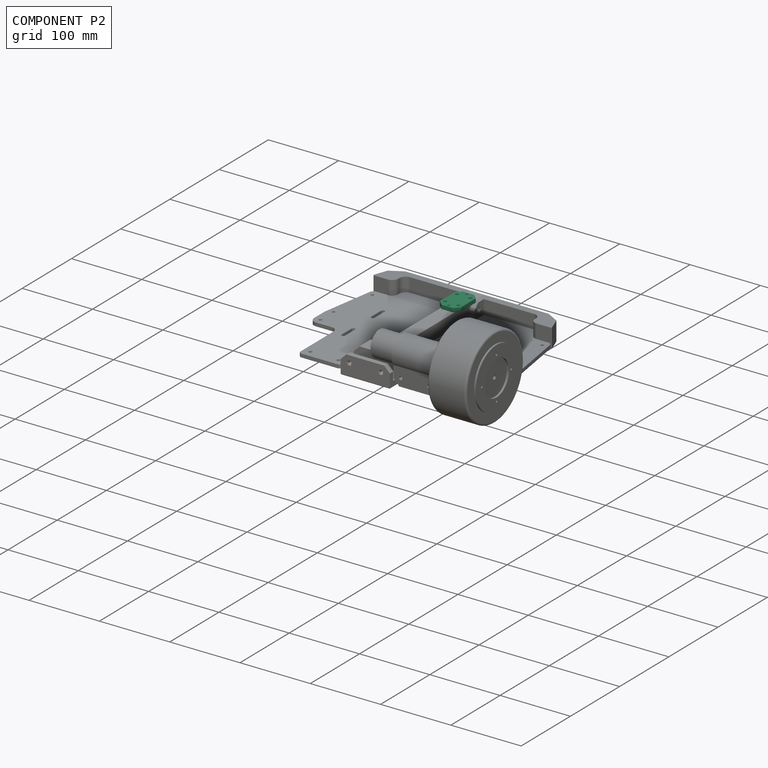
[diagram: component P2 — assembled]
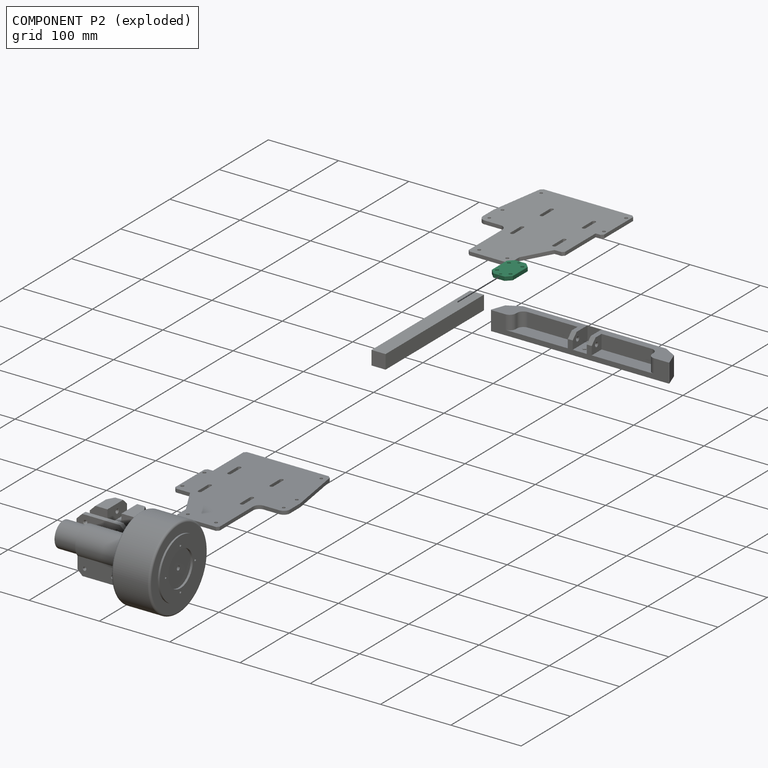
[diagram: component P2 — exploded]
COMPONENT P2 — recipe-attached ("SupportAccelero", modeled in this document).
Held by: resting contact with P3 (derived edge).
Construction recipe (the document's own serialized feature program — sketch geometry with constraints, then the solid features built on it; lengths are millimeters unless a unit is written):

FEATURE [Sketcher::SketchObject] Sketch030
  ArcFitTolerance = 1e-06
  AttachmentSupport = -> [XY_Plane013]
  ExternalBSplineMaxDegree = 5
  ExternalBSplineTolerance = 0.0001
  FullyConstrained = true
  InternalTolerance = 1e-06
  InvalidShape = false
  MakeInternals = false
  MapMode = 5
  Support = -> [XY_Plane013]
  TreeRank = 257
  ValidateShape = false
  sketch-geometry (21):
    g0: LineSegment StartX=-15 StartY=-22 StartZ=0 EndX=-15 EndY=22 EndZ=0
    g1: LineSegment StartX=-15 StartY=22 StartZ=0 EndX=15 EndY=22 EndZ=0
    g2: LineSegment StartX=15 StartY=22 StartZ=0 EndX=15 EndY=-22 EndZ=0
    g3: LineSegment StartX=15 StartY=-22 StartZ=0 EndX=-15 EndY=-22 EndZ=0
    g4: GeomPoint [constr] X=0 Y=0 Z=0
    g5: LineSegment [constr] StartX=-9.5 StartY=-12 StartZ=0 EndX=-9.5 EndY=12 EndZ=0
    g6: LineSegment [constr] StartX=-9.5 StartY=12 StartZ=0 EndX=9.5 EndY=12 EndZ=0
    g7: LineSegment [constr] StartX=9.5 StartY=12 StartZ=0 EndX=9.5 EndY=-12 EndZ=0
    g8: LineSegment [constr] StartX=9.5 StartY=-12 StartZ=0 EndX=-9.5 EndY=-12 EndZ=0
    g9: GeomPoint [constr] X=0 Y=0 Z=0
    g10: Circle CenterX=9.5 CenterY=12 CenterZ=0 NormalX=0 NormalY=0 NormalZ=1 AngleXU=0 Radius=2.2
    g11: Circle CenterX=-9.5 CenterY=12 CenterZ=0 NormalX=0 NormalY=0 NormalZ=1 AngleXU=0 Radius=2.2
    g12: Circle CenterX=-9.5 CenterY=-12 CenterZ=0 NormalX=0 NormalY=0 NormalZ=1 AngleXU=0 Radius=2.2
    g13: Circle CenterX=9.5 CenterY=-12 CenterZ=0 NormalX=0 NormalY=0 NormalZ=1 AngleXU=0 Radius=2.2
    g14: Circle CenterX=0 CenterY=18.5 CenterZ=0 NormalX=0 NormalY=0 NormalZ=1 AngleXU=0 Radius=1.7
    g15: Circle CenterX=0 CenterY=-18.5 CenterZ=0 NormalX=0 NormalY=0 NormalZ=1 AngleXU=0 Radius=1.7
    g16: LineSegment [constr] StartX=-15 StartY=15 StartZ=0 EndX=-15 EndY=-15 EndZ=0
    g17: LineSegment [constr] StartX=-15 StartY=-15 StartZ=0 EndX=15 EndY=-15 EndZ=0
    g18: LineSegment [constr] StartX=15 StartY=-15 StartZ=0 EndX=15 EndY=15 EndZ=0
    g19: LineSegment [constr] StartX=15 StartY=15 StartZ=0 EndX=-15 EndY=15 EndZ=0
    g20: GeomPoint [constr] X=0 Y=0 Z=0
  constraints (49):
    c: Coincident(g0,g1)
    c: Coincident(g1,g2)
    c: Coincident(g2,g3)
    c: Coincident(g3,g0)
    c: Horizontal(g1)
    c: Horizontal(g3)
    c: Vertical(g0)
    c: Vertical(g2)
    c: Symmetric(g1,g0,g4)
    c: Coincident(g4,g-1)
    c: DistanceX(g1,g1) = 30
    c: Coincident(g5,g6)
    c: Coincident(g6,g7)
    c: Coincident(g7,g8)
    c: Coincident(g8,g5)
    c: Horizontal(g6)
    c: Horizontal(g8)
    c: Vertical(g5)
    c: Vertical(g7)
    c: Symmetric(g6,g5,g9)
    c: Coincident(g9,g4)
    c: DistanceX(g6,g6) = 19
    c: DistanceY(g7,g7) = 24
    c: Coincident(g10,g6)
    c: Coincident(g11,g5)
    c: Coincident(g12,g5)
    c: Coincident(g13,g7)
    c: Equal(g13,g12)
    c: Equal(g12,g11)
    c: Equal(g11,g10)
    c: Diameter(g10) = 4.4
    c: DistanceY(g2,g2) = 44
    c: PointOnObject(g14,g-2)
    c: Equal(g15,g14)
    c: Diameter(g14) = 3.4
    c: Symmetric(g14,g15,g4)
    c: Coincident(g16,g17)
    c: Coincident(g17,g18)
    c: Coincident(g18,g19)
    c: Coincident(g19,g16)
    c: Horizontal(g17)
    c: Horizontal(g19)
    c: Vertical(g16)
    c: Vertical(g18)
    c: Symmetric(g17,g16,g20)
    c: Coincident(g20,g4)
    c: PointOnObject(g17,g2)
    c: DistanceY(g17,g18) = 30
    c: DistanceY(g15,g14) = 37
FEATURE [PartDesign::Pad] Pad016
  AddSubType = 0
  AlongSketchNormal = false
  AutoTaperInnerAngle = true
  CheckUpToFaceLimits = true
  ClaimChildren = false
  Direction = (0,0,1)
  Fit = 0
  FitJoin = 0
  InnerFit = 0
  InnerFitJoin = 0
  InvalidShape = false
  Length = 6
  Length2 = 10
  Linearize = true
  NewSolid = false
  Profile = -> Sketch030
  ReferenceAxis = -> Sketch030 [N_Axis]
  Refine = true
  Suppress = false
  TaperInnerAngle = 0
  TaperInnerAngleRev = 0
  TreeRank = 258
  Type = 0
  ValidateShape = true
  _ProfileBasedVersion = 1
FEATURE [PartDesign::Chamfer] Chamfer007
  AddSubType = 0
  Angle = 45
  Base = -> Pad016 [Edge5,Edge2,Edge1,Edge8]
  BaseFeature = -> Pad016
  ChamferType = 0
  FlipDirection = false
  InvalidShape = false
  NewSolid = false
  Refine = true
  Size = 7
  Size2 = 1
  SupportTransform = false
  Suppress = false
  TreeRank = 259
  UseAllEdges = false
  ValidateShape = true
FEATURE [PartDesign::Chamfer] Chamfer008
  AddSubType = 0
  Angle = 45
  Base = -> Chamfer007 [Face5,Face2]
  BaseFeature = -> Chamfer007
  ChamferType = 0
  FlipDirection = false
  InvalidShape = false
  NewSolid = false
  Refine = true
  Size = 0.4
  Size2 = 1
  SupportTransform = false
  Suppress = false
  TreeRank = 260
  UseAllEdges = false
  ValidateShape = true
FEATURE [PartDesign::Body] Body011  label="SupportAccelero"
  AutoGroupSolids = false
  ClaimAllChildren = false
  ExportMode = 0
  Group = -> [Sketch030,Pad016,Chamfer007,Chamfer008]
  InvalidShape = false
  Origin = -> Origin014
  Placement = pos=(0,171,-17.3) rot=(0,0,1;0rad)
  Tip = -> Chamfer008
  TreeRank = 256
  ValidateShape = false
  _ExportChildren = -> [Pad016,Chamfer007,Chamfer008]
  _GroupVersion = 1
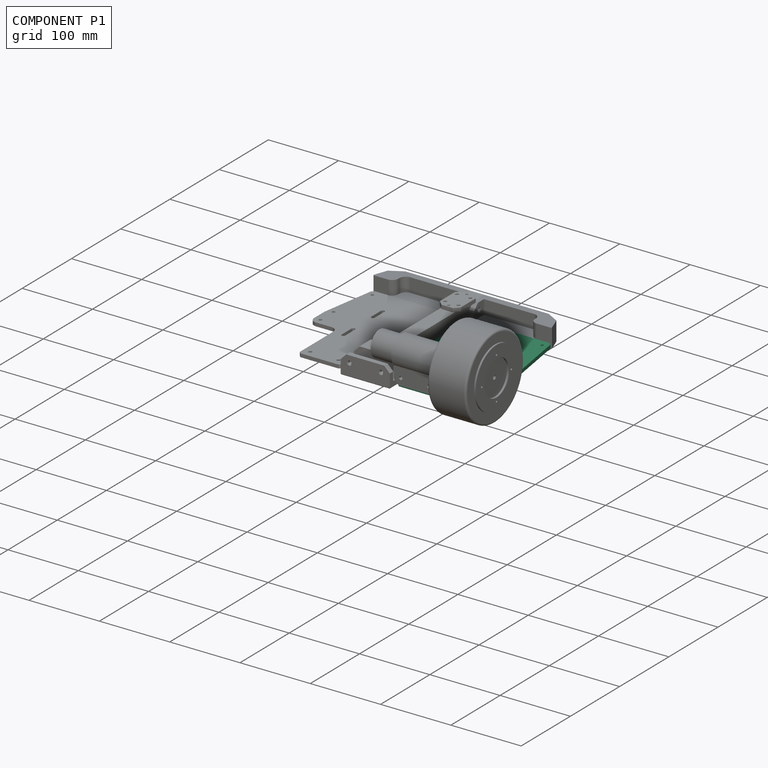
[diagram: component P1 — assembled]
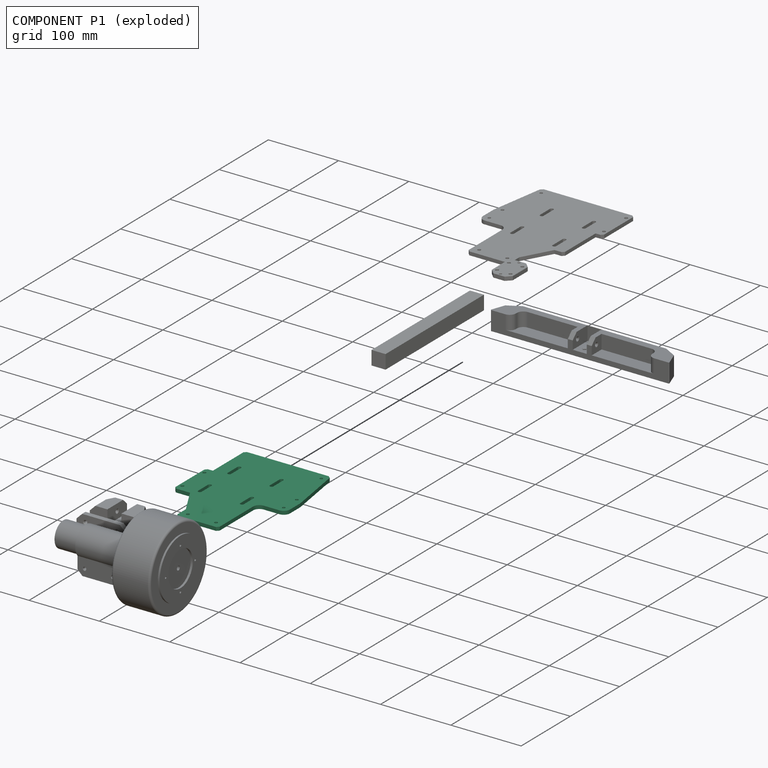
[diagram: component P1 — exploded]
COMPONENT P1 — recipe-attached ("Plaque", modeled in this document).
Held by: resting contact with P0 (derived edge); resting contact with P4 (derived edge); resting contact with P5 (derived edge).
Construction recipe (the document's own serialized feature program — sketch geometry with constraints, then the solid features built on it; lengths are millimeters unless a unit is written):

FEATURE [Part::SubShapeBinder] Import003  label="Import003(Chamfer012)"
  BindCopyOnChange = 0
  BindMode = 0
  ClaimChildren = false
  Context = -> Body010 [Import003.]
  EdgeTolerance = 1e-06
  FillStyle = 0
  Fuse = false
  InvalidShape = false
  MakeFace = false
  MergeEdges = true
  OffsetFill = false
  OffsetIntersection = false
  OffsetJoinType = 0
  OffsetOpenResult = false
  Outline = false
  PartialLoad = false
  Relative = true
  SplitEdges = false
  Support = -> [Body012[Chamfer012.]]
  TightBound = false
  TreeRank = 293
  ValidateShape = false
  _Version = 8
FEATURE [Sketcher::SketchObject] Sketch029
  ArcFitTolerance = 1e-06
  AttachmentSupport = -> [XY_Plane012]
  ExternalBSplineMaxDegree = 5
  ExternalBSplineTolerance = 0.0001
  ExternalGeometry = -> [Import003]
  FullyConstrained = true
  InternalTolerance = 1e-06
  InvalidShape = false
  MakeInternals = false
  MapMode = 5
  Support = -> [XY_Plane012]
  TreeRank = 246
  ValidateShape = false
  sketch-geometry (16):
    g0: LineSegment StartX=100 StartY=-10 StartZ=0 EndX=100 EndY=70 EndZ=0
    g1: LineSegment StartX=100 StartY=70 StartZ=0 EndX=140 EndY=70 EndZ=0
    g2: LineSegment StartX=140 StartY=70 StartZ=0 EndX=140 EndY=100 EndZ=0
    g3: LineSegment StartX=140 StartY=100 StartZ=0 EndX=127.279 EndY=180 EndZ=0
    g4: LineSegment StartX=127.279 StartY=180 StartZ=0 EndX=5 EndY=180 EndZ=0
    g5: LineSegment StartX=-5 StartY=50 StartZ=0 EndX=18 EndY=50 EndZ=0
    g6: LineSegment StartX=18 StartY=50 StartZ=0 EndX=40 EndY=10 EndZ=0
    g7: LineSegment StartX=40 StartY=10 StartZ=0 EndX=40 EndY=-10 EndZ=0
    g8: LineSegment StartX=40 StartY=-10 StartZ=0 EndX=100 EndY=-10 EndZ=0
    g9: LineSegment StartX=5 StartY=180 StartZ=0 EndX=5 EndY=115 EndZ=0
    g10: LineSegment StartX=5 StartY=115 StartZ=0 EndX=-5 EndY=115 EndZ=0
    g11: LineSegment StartX=-5 StartY=115 StartZ=0 EndX=-5 EndY=50 EndZ=0
    g12: Circle CenterX=90 CenterY=0 CenterZ=0 NormalX=0 NormalY=0 NormalZ=1 AngleXU=0 Radius=2.25
    g13: Circle CenterX=50 CenterY=0 CenterZ=0 NormalX=0 NormalY=0 NormalZ=1 AngleXU=0 Radius=2.25
    g14: Circle CenterX=0 CenterY=60 CenterZ=0 NormalX=0 NormalY=0 NormalZ=1 AngleXU=0 Radius=2.25
    g15: Circle CenterX=0 CenterY=105 CenterZ=0 NormalX=0 NormalY=0 NormalZ=1 AngleXU=0 Radius=2.25
  constraints (50):
    c: Vertical(g0)
    c: Coincident(g1,g0)
    c: Horizontal(g1)
    c: Coincident(g1,g2)
    c: Vertical(g2)
    c: Coincident(g2,g3)
    c: Coincident(g3,g4)
    c: Horizontal(g4)
    c: Horizontal(g5)
    c: Coincident(g5,g6)
    c: Coincident(g6,g7)
    c: Vertical(g7)
    c: Coincident(g7,g8)
    c: Coincident(g8,g0)
    c: Horizontal(g8)
    c: DistanceY(g0,g-1) = 10
    c: DistanceX(g-1,g0) = 100
    c: DistanceY(g7,g7) = 20
    c: DistanceX(g-1,g6) = 40
    c: DistanceY(g0,g0) = 80
    c: DistanceX(g1,g1) = 40
    c: Coincident(g4,g9)
    c: Vertical(g9)
    c: Coincident(g9,g10)
    c: Horizontal(g10)
    c: Coincident(g10,g11)
    c: Coincident(g11,g5)
    c: Vertical(g11)
    c: DistanceY(g-1,g4) = 180
    c: DistanceX(g5,g-1) = 5
    c: DistanceY(g-1,g5) = 50
    c: DistanceX(g5) = 18
    c: Equal(g11,g9)
    c: PointOnObject(g12,g-1)
    c: PointOnObject(g13,g-1)
    c: Equal(g13,g12)
    c: Diameter(g12) = 4.5
    c: DistanceX(g12,g0) = 10
    c: DistanceX(g-1,g13) = 50
    c: PointOnObject(g14,g-2)
    c: PointOnObject(g15,g-2)
    c: DistanceY(g15,g10) = 10
    c: DistanceY(g5,g14) = 10
    c: Equal(g14,g15)
    c: Equal(g15,g13)
    c: DistanceX(g-1,g9) = 5
    c: DistanceX(g5,g1) = 145
    c: DistanceY(g0,g4) = 190
    c: PointOnObject(g3,g-3)
    c: DistanceY(g2,g2) = 30
FEATURE [PartDesign::Pad] Pad018
  AddSubType = 0
  AlongSketchNormal = false
  AutoTaperInnerAngle = true
  CheckUpToFaceLimits = true
  ClaimChildren = false
  Direction = (0,0,1)
  Fit = 0
  FitJoin = 0
  InnerFit = 0
  InnerFitJoin = 0
  InvalidShape = false
  Length = 5
  Length2 = 10
  Linearize = true
  NewSolid = false
  Profile = -> Sketch029
  ReferenceAxis = -> Sketch029 [N_Axis]
  Refine = true
  Reversed = true
  Suppress = false
  TaperInnerAngle = 0
  TaperInnerAngleRev = 0
  TreeRank = 294
  Type = 0
  ValidateShape = true
  _ProfileBasedVersion = 1
FEATURE [PartDesign::Fillet] Fillet005
  AddSubType = 0
  Base = -> Pad018 [Edge2,Edge5]
  BaseFeature = -> Pad018
  InvalidShape = false
  NewSolid = false
  Radius = 9
  Refine = true
  SupportTransform = false
  Suppress = false
  TreeRank = 295
  UseAllEdges = false
  ValidateShape = true
FEATURE [PartDesign::Chamfer] Chamfer013
  AddSubType = 0
  Angle = 45
  Base = -> Fillet005 [Edge48,Edge46,Edge49,Edge47,Edge3,Edge24]
  BaseFeature = -> Fillet005
  ChamferType = 0
  FlipDirection = false
  InvalidShape = false
  NewSolid = false
  Refine = true
  Size = 3
  Size2 = 1
  SupportTransform = false
  Suppress = false
  TreeRank = 296
  UseAllEdges = false
  ValidateShape = true
FEATURE [Sketcher::SketchObject] Sketch038
  ArcFitTolerance = 1e-06
  AttachmentSupport = -> [Chamfer013]
  ExternalBSplineMaxDegree = 5
  ExternalBSplineTolerance = 0.0001
  ExternalGeometry = -> [Chamfer013]
  FullyConstrained = true
  InternalTolerance = 1e-06
  InvalidShape = false
  MakeInternals = false
  MapMode = 5
  Support = -> [Chamfer013]
  TreeRank = 297
  ValidateShape = false
  sketch-geometry (21):
    g0: ArcOfCircle CenterX=25 CenterY=80 CenterZ=0 NormalX=0 NormalY=0 NormalZ=1 AngleXU=0 Radius=2.5 StartAngle=0 EndAngle=3.14159
    g1: ArcOfCircle CenterX=25 CenterY=60 CenterZ=0 NormalX=0 NormalY=0 NormalZ=1 AngleXU=0 Radius=2.5 StartAngle=3.14159 EndAngle=6.28319
    g2: LineSegment StartX=22.5 StartY=80 StartZ=0 EndX=22.5 EndY=60 EndZ=0
    g3: LineSegment StartX=27.5 StartY=60 StartZ=0 EndX=27.5 EndY=80 EndZ=0
    g4: ArcOfCircle CenterX=85 CenterY=80 CenterZ=0 NormalX=0 NormalY=0 NormalZ=1 AngleXU=0 Radius=2.5 StartAngle=-1.8e-15 EndAngle=3.14159
    g5: ArcOfCircle CenterX=85 CenterY=60 CenterZ=0 NormalX=0 NormalY=0 NormalZ=1 AngleXU=0 Radius=2.5 StartAngle=3.14159 EndAngle=6.28319
    g6: LineSegment StartX=82.5 StartY=80 StartZ=0 EndX=82.5 EndY=60 EndZ=0
    g7: LineSegment StartX=87.5 StartY=60 StartZ=0 EndX=87.5 EndY=80 EndZ=0
    g8: ArcOfCircle CenterX=25 CenterY=140 CenterZ=0 NormalX=0 NormalY=0 NormalZ=1 AngleXU=0 Radius=2.5 StartAngle=0 EndAngle=3.14159
    g9: ArcOfCircle CenterX=25 CenterY=120 CenterZ=0 NormalX=0 NormalY=0 NormalZ=1 AngleXU=0 Radius=2.5 StartAngle=3.14159 EndAngle=6.28319
    g10: LineSegment StartX=22.5 StartY=140 StartZ=0 EndX=22.5 EndY=120 EndZ=0
    g11: LineSegment StartX=27.5 StartY=120 StartZ=0 EndX=27.5 EndY=140 EndZ=0
    g12: ArcOfCircle CenterX=85 CenterY=140 CenterZ=0 NormalX=0 NormalY=0 NormalZ=1 AngleXU=0 Radius=2.5 StartAngle=-4.4e-15 EndAngle=3.14159
    g13: ArcOfCircle CenterX=85 CenterY=120 CenterZ=0 NormalX=0 NormalY=0 NormalZ=1 AngleXU=0 Radius=2.5 StartAngle=3.14159 EndAngle=6.28319
    g14: LineSegment StartX=82.5 StartY=140 StartZ=0 EndX=82.5 EndY=120 EndZ=0
    g15: LineSegment StartX=87.5 StartY=120 StartZ=0 EndX=87.5 EndY=140 EndZ=0
    g16: Circle CenterX=120.793 CenterY=169.851 CenterZ=0 NormalX=0 NormalY=0 NormalZ=1 AngleXU=0 Radius=2.1
    g17: Circle CenterX=131 CenterY=79 CenterZ=0 NormalX=0 NormalY=0 NormalZ=1 AngleXU=0 Radius=2.1
    g18: Circle CenterX=131 CenterY=105.657 CenterZ=0 NormalX=0 NormalY=0 NormalZ=1 AngleXU=0 Radius=2.1
    g19: LineSegment [constr] StartX=120.793 StartY=169.851 StartZ=0 EndX=131 EndY=105.657 EndZ=0
    g20: LineSegment [constr] StartX=131 StartY=105.657 StartZ=0 EndX=138.901 EndY=106.913 EndZ=0
  constraints (53):
    c: Tangent(g0,g2) = -1.5708
    c: Tangent(g2,g1) = -1.5708
    c: Tangent(g1,g3) = -1.5708
    c: Tangent(g3,g0) = -1.5708
    c: Equal(g0,g1)
    c: Vertical(g2)
    c: Tangent(g4,g6) = -1.5708
    c: Tangent(g6,g5) = -1.5708
    c: Tangent(g5,g7) = -1.5708
    c: Tangent(g7,g4) = -1.5708
    c: Equal(g4,g5)
    c: Vertical(g6)
    c: Tangent(g8,g10) = -1.5708
    c: Tangent(g10,g9) = -1.5708
    c: Tangent(g9,g11) = -1.5708
    c: Tangent(g11,g8) = -1.5708
    c: Equal(g8,g9)
    c: Vertical(g10)
    c: Tangent(g12,g14) = -1.5708
    c: Tangent(g14,g13) = -1.5708
    c: Tangent(g13,g15) = -1.5708
    c: Tangent(g15,g12) = -1.5708
    c: Equal(g12,g13)
    c: Vertical(g14)
    c: DistanceX(g8,g12) = 60
    c: Equal(g4,g8)
    c: Equal(g8,g0)
    c: Equal(g0,g13)
    c: Vertical(g0,g9)
    c: Vertical(g4,g13)
    c: Equal(g6,g3)
    c: Equal(g3,g11)
    c: Equal(g11,g14)
    c: Horizontal(g8,g12)
    c: Horizontal(g4,g0)
    c: Radius(g12) = 2.5
    c: DistanceY(g6,g6) = 20
    c: DistanceY(g1,g8) = 80
    c: DistanceX(g-1,g1) = 25
    c: DistanceY(g-1,g1) = 60
    c: Equal(g17,g16)
    c: Diameter(g17) = 4.2
    c: Coincident(g17,g-3)
    c: Equal(g18,g16)
    c: Coincident(g19,g16)
    c: Coincident(g19,g18)
    c: Parallel(g19,g-4)
    c: Coincident(g20,g18)
    c: PointOnObject(g20,g-4)
    c: Perpendicular(g19,g20)
    c: Distance(g20) = 8
    c: Vertical(g17,g18)
    c: Distance(g19) = 65
FEATURE [PartDesign::Pocket] Pocket019
  AddSubType = 1
  AlongSketchNormal = false
  AutoTaperInnerAngle = true
  BaseFeature = -> Chamfer013
  CheckUpToFaceLimits = true
  ClaimChildren = false
  Direction = (0,0,-1)
  Fit = 0
  FitJoin = 0
  InnerFit = 0
  InnerFitJoin = 0
  InvalidShape = false
  Length = 5
  Length2 = 10
  Linearize = true
  NewSolid = false
  Profile = -> Sketch038
  ReferenceAxis = -> Sketch038 [N_Axis]
  Refine = true
  Suppress = false
  TaperInnerAngle = 0
  TaperInnerAngleRev = 0
  TreeRank = 298
  Type = 1
  ValidateShape = true
  _ProfileBasedVersion = 1
  _Version = 1
FEATURE [PartDesign::Body] Body010  label="Plaque"
  AutoGroupSolids = false
  ClaimAllChildren = false
  ExportMode = 0
  Group = -> [Sketch029,Import003,Pad018,Fillet005,Chamfer013,Sketch038,Pocket019]
  InvalidShape = false
  Origin = -> Origin013
  Placement = pos=(0,0,-37.3) rot=(0,0,1;0rad)
  Tip = -> Pocket019
  TreeRank = 245
  ValidateShape = false
  _ExportChildren = -> [Import003,Pad018,Fillet005,Chamfer013,Pocket019]
  _GroupVersion = 1
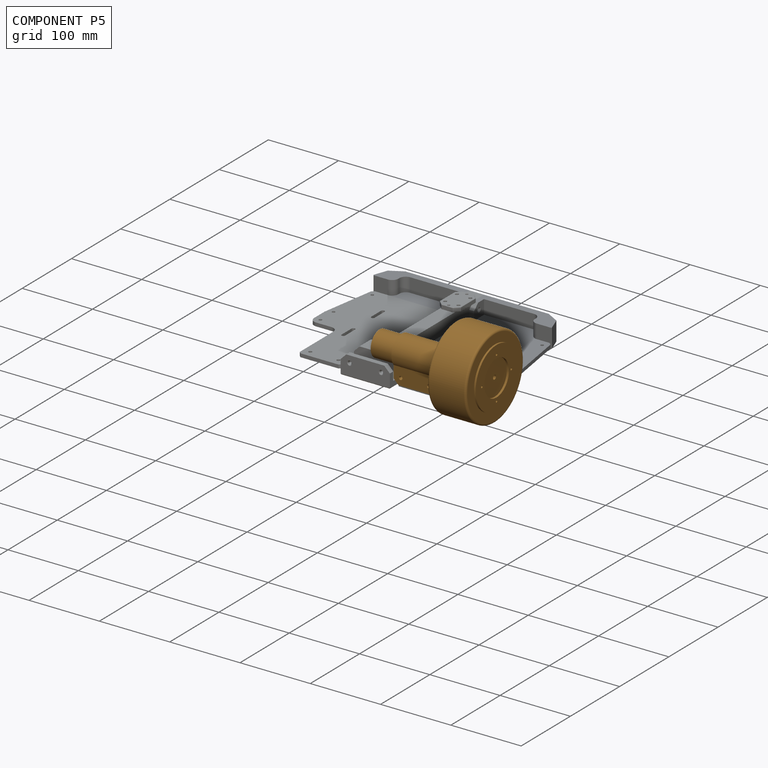
[diagram: component P5 — assembled]
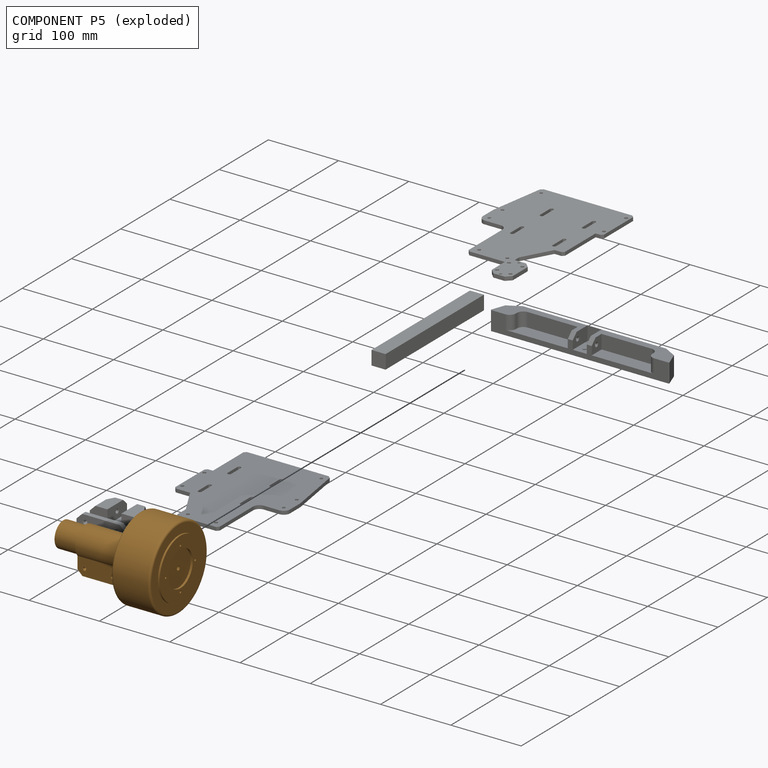
[diagram: component P5 — exploded]
COMPONENT P5 — geometry summary ("Link001(RoueMoteur)"; no construction recipe available for this part):
  bounding box: 166.7 x 117.5 x 117.5 mm
  tessellated surface: 57,408 triangles
  volume: 823702 mm^3 (36% of its bounding box)
  symmetry: mirror-symmetric across its y mid-plane
Held by: resting contact with P1 (derived edge); resting contact with P6 (derived edge).
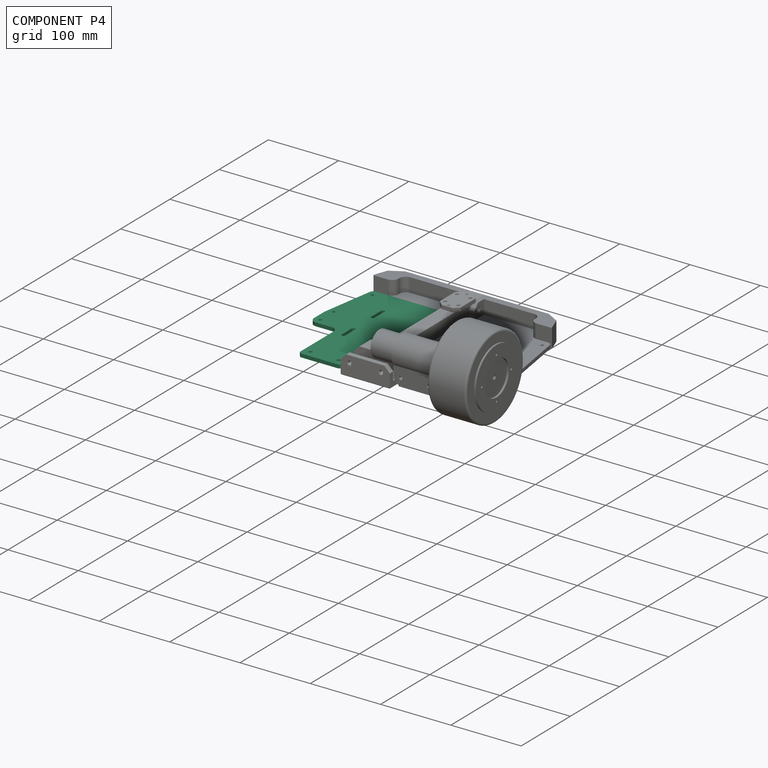
[diagram: component P4 — assembled]
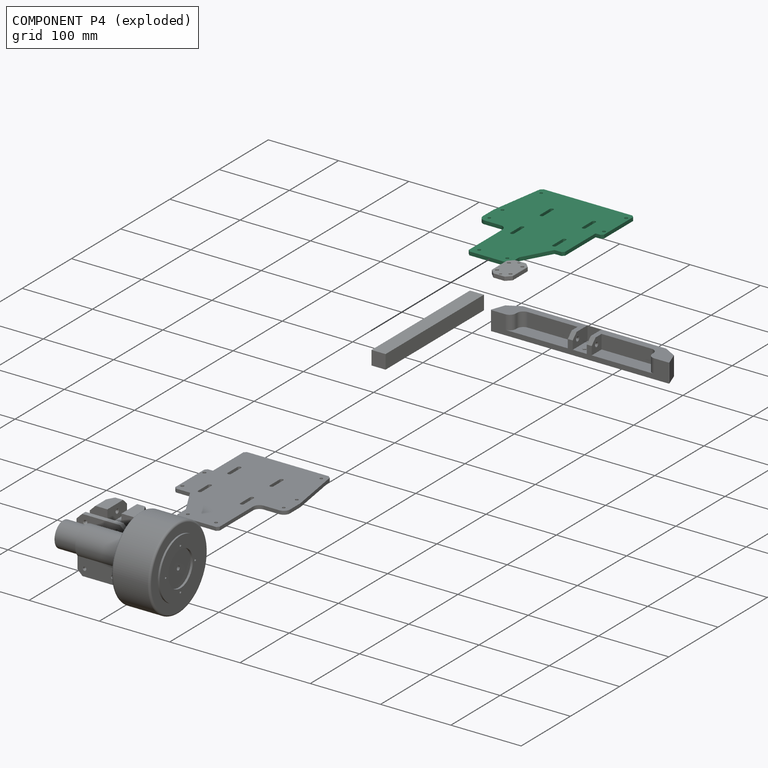
[diagram: component P4 — exploded]
COMPONENT P4 — recipe-attached ("Plaque001", modeled in this document).
Held by: resting contact with P0 (derived edge); resting contact with P1 (derived edge); resting contact with P3 (derived edge).
Construction recipe (the document's own serialized feature program — sketch geometry with constraints, then the solid features built on it; lengths are millimeters unless a unit is written):

FEATURE [Sketcher::SketchObject] Sketch039
  ArcFitTolerance = 1e-06
  AttachmentSupport = -> [XY_Plane015]
  ExternalBSplineMaxDegree = 5
  ExternalBSplineTolerance = 0.0001
  FullyConstrained = true
  InternalTolerance = 1e-06
  InvalidShape = false
  MakeInternals = false
  MapMode = 5
  Support = -> [XY_Plane015]
  TreeRank = 246
  ValidateShape = false
  sketch-geometry (16):
    g0: LineSegment StartX=100 StartY=-10 StartZ=0 EndX=100 EndY=70 EndZ=0
    g1: LineSegment StartX=100 StartY=70 StartZ=0 EndX=140 EndY=70 EndZ=0
    g2: LineSegment StartX=140 StartY=70 StartZ=0 EndX=140 EndY=100 EndZ=0
    g3: LineSegment StartX=140 StartY=100 StartZ=0 EndX=127.28 EndY=180 EndZ=0
    g4: LineSegment StartX=127.28 StartY=180 StartZ=0 EndX=-5 EndY=180 EndZ=0
    g5: LineSegment StartX=5 StartY=50 StartZ=0 EndX=18 EndY=50 EndZ=0
    g6: LineSegment StartX=18 StartY=50 StartZ=0 EndX=40 EndY=10 EndZ=0
    g7: LineSegment StartX=40 StartY=10 StartZ=0 EndX=40 EndY=-10 EndZ=0
    g8: LineSegment StartX=40 StartY=-10 StartZ=0 EndX=100 EndY=-10 EndZ=0
    g9: LineSegment StartX=-5 StartY=180 StartZ=0 EndX=-5 EndY=115 EndZ=0
    g10: Circle CenterX=90 CenterY=0 CenterZ=0 NormalX=0 NormalY=0 NormalZ=1 AngleXU=0 Radius=2.25
    g11: Circle CenterX=50 CenterY=0 CenterZ=0 NormalX=0 NormalY=0 NormalZ=1 AngleXU=0 Radius=2.25
    g12: Circle CenterX=0 CenterY=125 CenterZ=0 NormalX=0 NormalY=0 NormalZ=1 AngleXU=0 Radius=2.25
    g13: Circle CenterX=0 CenterY=170 CenterZ=0 NormalX=0 NormalY=0 NormalZ=1 AngleXU=0 Radius=2.25
    g14: LineSegment StartX=-5 StartY=115 StartZ=0 EndX=5 EndY=115 EndZ=0
    g15: LineSegment StartX=5 StartY=115 StartZ=0 EndX=5 EndY=50 EndZ=0
  constraints (50):
    c: Vertical(g0)
    c: Coincident(g1,g0)
    c: Horizontal(g1)
    c: Coincident(g1,g2)
    c: Vertical(g2)
    c: Coincident(g2,g3)
    c: Coincident(g3,g4)
    c: Horizontal(g4)
    c: Horizontal(g5)
    c: Coincident(g5,g6)
    c: Coincident(g6,g7)
    c: Vertical(g7)
    c: Coincident(g7,g8)
    c: Coincident(g8,g0)
    c: Horizontal(g8)
    c: DistanceY(g0,g-1) = 10
    c: DistanceX(g-1,g0) = 100
    c: DistanceY(g7,g7) = 20
    c: DistanceX(g-1,g6) = 40
    c: DistanceY(g0,g0) = 80
    c: DistanceX(g1,g1) = 40
    c: Coincident(g4,g9)
    c: Vertical(g9)
    c: DistanceY(g-1,g4) = 180
    c: DistanceY(g-1,g5) = 50
    c: DistanceX(g5) = 18
    c: PointOnObject(g10,g-1)
    c: PointOnObject(g11,g-1)
    c: Equal(g11,g10)
    c: Diameter(g10) = 4.5
    c: DistanceX(g10,g0) = 10
    c: DistanceX(g-1,g11) = 50
    c: PointOnObject(g12,g-2)
    c: PointOnObject(g13,g-2)
    c: Equal(g12,g13)
    c: Equal(g13,g11)
    c: DistanceX(g5,g1) = 135
    c: DistanceY(g0,g4) = 190
    c: DistanceY(g2,g2) = 30
    c: DistanceX(g3) = 127.28
    c: DistanceX(g9) = -5
    c: Coincident(g9,g14)
    c: Horizontal(g14)
    c: Coincident(g14,g15)
    c: Vertical(g15)
    c: Equal(g15,g9)
    c: DistanceX(g14) = 5
    c: Coincident(g15,g5)
    c: DistanceY(g9,g12) = 10
    c: DistanceY(g13,g4) = 10
FEATURE [PartDesign::Pad] Pad020
  AddSubType = 0
  AlongSketchNormal = false
  AutoTaperInnerAngle = true
  CheckUpToFaceLimits = true
  ClaimChildren = false
  Direction = (0,0,1)
  Fit = 0
  FitJoin = 0
  InnerFit = 0
  InnerFitJoin = 0
  InvalidShape = false
  Length = 5
  Length2 = 10
  Linearize = true
  NewSolid = false
  Profile = -> Sketch039
  ReferenceAxis = -> Sketch039 [N_Axis]
  Refine = true
  Reversed = true
  Suppress = false
  TaperInnerAngle = 0
  TaperInnerAngleRev = 0
  TreeRank = 294
  Type = 0
  ValidateShape = true
  _ProfileBasedVersion = 1
FEATURE [PartDesign::Fillet] Fillet008
  AddSubType = 0
  Base = -> Pad020 [Edge2,Edge5]
  BaseFeature = -> Pad020
  InvalidShape = false
  NewSolid = false
  Radius = 9
  Refine = true
  SupportTransform = false
  Suppress = false
  TreeRank = 295
  UseAllEdges = false
  ValidateShape = true
FEATURE [PartDesign::Chamfer] Chamfer018
  AddSubType = 0
  Angle = 45
  Base = -> Fillet008 [Edge50,Edge46,Edge49,Edge47,Edge3,Edge24]
  BaseFeature = -> Fillet008
  ChamferType = 0
  FlipDirection = false
  InvalidShape = false
  NewSolid = false
  Refine = true
  Size = 3
  Size2 = 1
  SupportTransform = false
  Suppress = false
  TreeRank = 296
  UseAllEdges = false
  ValidateShape = true
FEATURE [Sketcher::SketchObject] Sketch047
  ArcFitTolerance = 1e-06
  AttachmentSupport = -> [Chamfer018]
  ExternalBSplineMaxDegree = 5
  ExternalBSplineTolerance = 0.0001
  ExternalGeometry = -> [Chamfer018]
  FullyConstrained = true
  InternalTolerance = 1e-06
  InvalidShape = false
  MakeInternals = false
  MapMode = 5
  Support = -> [Chamfer018]
  TreeRank = 297
  ValidateShape = false
  sketch-geometry (21):
    g0: ArcOfCircle CenterX=25 CenterY=80 CenterZ=0 NormalX=0 NormalY=0 NormalZ=1 AngleXU=0 Radius=2.5 StartAngle=0 EndAngle=3.14159
    g1: ArcOfCircle CenterX=25 CenterY=60 CenterZ=0 NormalX=0 NormalY=0 NormalZ=1 AngleXU=0 Radius=2.5 StartAngle=3.14159 EndAngle=6.28319
    g2: LineSegment StartX=22.5 StartY=80 StartZ=0 EndX=22.5 EndY=60 EndZ=0
    g3: LineSegment StartX=27.5 StartY=60 StartZ=0 EndX=27.5 EndY=80 EndZ=0
    g4: ArcOfCircle CenterX=85 CenterY=80 CenterZ=0 NormalX=0 NormalY=0 NormalZ=1 AngleXU=0 Radius=2.5 StartAngle=-1.8e-15 EndAngle=3.14159
    g5: ArcOfCircle CenterX=85 CenterY=60 CenterZ=0 NormalX=0 NormalY=0 NormalZ=1 AngleXU=0 Radius=2.5 StartAngle=3.14159 EndAngle=6.28319
    g6: LineSegment StartX=82.5 StartY=80 StartZ=0 EndX=82.5 EndY=60 EndZ=0
    g7: LineSegment StartX=87.5 StartY=60 StartZ=0 EndX=87.5 EndY=80 EndZ=0
    g8: ArcOfCircle CenterX=25 CenterY=140 CenterZ=0 NormalX=0 NormalY=0 NormalZ=1 AngleXU=0 Radius=2.5 StartAngle=0 EndAngle=3.14159
    g9: ArcOfCircle CenterX=25 CenterY=120 CenterZ=0 NormalX=0 NormalY=0 NormalZ=1 AngleXU=0 Radius=2.5 StartAngle=3.14159 EndAngle=6.28319
    g10: LineSegment StartX=22.5 StartY=140 StartZ=0 EndX=22.5 EndY=120 EndZ=0
    g11: LineSegment StartX=27.5 StartY=120 StartZ=0 EndX=27.5 EndY=140 EndZ=0
    g12: ArcOfCircle CenterX=85 CenterY=140 CenterZ=0 NormalX=0 NormalY=0 NormalZ=1 AngleXU=0 Radius=2.5 StartAngle=-4.4e-15 EndAngle=3.14159
    g13: ArcOfCircle CenterX=85 CenterY=120 CenterZ=0 NormalX=0 NormalY=0 NormalZ=1 AngleXU=0 Radius=2.5 StartAngle=3.14159 EndAngle=6.28319
    g14: LineSegment StartX=82.5 StartY=140 StartZ=0 EndX=82.5 EndY=120 EndZ=0
    g15: LineSegment StartX=87.5 StartY=120 StartZ=0 EndX=87.5 EndY=140 EndZ=0
    g16: Circle CenterX=120.793 CenterY=169.851 CenterZ=0 NormalX=0 NormalY=0 NormalZ=1 AngleXU=0 Radius=2.1
    g17: Circle CenterX=131 CenterY=79 CenterZ=0 NormalX=0 NormalY=0 NormalZ=1 AngleXU=0 Radius=2.1
    g18: Circle CenterX=131 CenterY=105.657 CenterZ=0 NormalX=0 NormalY=0 NormalZ=1 AngleXU=0 Radius=2.1
    g19: LineSegment [constr] StartX=120.793 StartY=169.851 StartZ=0 EndX=131 EndY=105.657 EndZ=0
    g20: LineSegment [constr] StartX=131 StartY=105.657 StartZ=0 EndX=138.901 EndY=106.913 EndZ=0
  constraints (53):
    c: Tangent(g0,g2) = -1.5708
    c: Tangent(g2,g1) = -1.5708
    c: Tangent(g1,g3) = -1.5708
    c: Tangent(g3,g0) = -1.5708
    c: Equal(g0,g1)
    c: Vertical(g2)
    c: Tangent(g4,g6) = -1.5708
    c: Tangent(g6,g5) = -1.5708
    c: Tangent(g5,g7) = -1.5708
    c: Tangent(g7,g4) = -1.5708
    c: Equal(g4,g5)
    c: Vertical(g6)
    c: Tangent(g8,g10) = -1.5708
    c: Tangent(g10,g9) = -1.5708
    c: Tangent(g9,g11) = -1.5708
    c: Tangent(g11,g8) = -1.5708
    c: Equal(g8,g9)
    c: Vertical(g10)
    c: Tangent(g12,g14) = -1.5708
    c: Tangent(g14,g13) = -1.5708
    c: Tangent(g13,g15) = -1.5708
    c: Tangent(g15,g12) = -1.5708
    c: Equal(g12,g13)
    c: Vertical(g14)
    c: DistanceX(g8,g12) = 60
    c: Equal(g4,g8)
    c: Equal(g8,g0)
    c: Equal(g0,g13)
    c: Vertical(g0,g9)
    c: Vertical(g4,g13)
    c: Equal(g6,g3)
    c: Equal(g3,g11)
    c: Equal(g11,g14)
    c: Horizontal(g8,g12)
    c: Horizontal(g4,g0)
    c: Radius(g12) = 2.5
    c: DistanceY(g6,g6) = 20
    c: DistanceY(g1,g8) = 80
    c: DistanceX(g-1,g1) = 25
    c: DistanceY(g-1,g1) = 60
    c: Equal(g17,g16)
    c: Diameter(g17) = 4.2
    c: Coincident(g17,g-3)
    c: Equal(g18,g16)
    c: Coincident(g19,g16)
    c: Coincident(g19,g18)
    c: Parallel(g19,g-4)
    c: Coincident(g20,g18)
    c: PointOnObject(g20,g-4)
    c: Perpendicular(g19,g20)
    c: Distance(g20) = 8
    c: Vertical(g17,g18)
    c: Distance(g19) = 65
FEATURE [PartDesign::Pocket] Pocket026
  AddSubType = 1
  AlongSketchNormal = false
  AutoTaperInnerAngle = true
  BaseFeature = -> Chamfer018
  CheckUpToFaceLimits = true
  ClaimChildren = false
  Direction = (0,0,-1)
  Fit = 0
  FitJoin = 0
  InnerFit = 0
  InnerFitJoin = 0
  InvalidShape = false
  Length = 5
  Length2 = 10
  Linearize = true
  NewSolid = false
  Profile = -> Sketch047
  ReferenceAxis = -> Sketch047 [N_Axis]
  Refine = true
  Suppress = false
  TaperInnerAngle = 0
  TaperInnerAngleRev = 0
  TreeRank = 298
  Type = 1
  ValidateShape = true
  _ProfileBasedVersion = 1
  _Version = 1
FEATURE [PartDesign::Body] Body013  label="Plaque001"
  AutoGroupSolids = false
  ClaimAllChildren = false
  ExportMode = 0
  Group = -> [Sketch039,Pad020,Fillet008,Chamfer018,Sketch047,Pocket026]
  InvalidShape = false
  Origin = -> Origin016
  Placement = pos=(6e-16,0,-42.3) rot=(0,1,0;3.14159rad)
  Tip = -> Pocket026
  TreeRank = 305
  ValidateShape = false
  _ExportChildren = -> [Pad020,Fillet008,Chamfer018,Pocket026]
  _GroupVersion = 1
PROVENANCE & LICENSES
Assembly and component geometry: a FreeCAD (.FCStd) document from a public repository crawl; components, placements and joints were extracted with FreeCAD and each solid tessellated.
Construction recipes: the document's own serialized feature recipes (and, for linked parts, the recipes of companion documents from the same project).
License: as declared in the source repository (recorded in the dataset sidecar).
Joints: native FreeCAD joints and A2plus constraints are mapped to standard mate types; edges marked 'derived from contact' connect touching components and are measured from the geometry, not modeled.
Verification: 6 of this assembly's 7 components carry a construction recipe (6 from this document itself); the rest are geometry-only. Every component's tessellation passed the extraction mesh gates (mesh-volume checksum against the B-rep where available, bounding-box inflation <= 2%).
Renders: orthographic iso camera (az 35 / el 25); the floor grid conveys scale (grid pitch printed in each image; no ruler). In the exploded view each component is displaced by its stored offset vector: the offsets alone carry the explosion direction (mate normal/axis signs are not orientation cues and do not encode it), and separation distances are assigned per mate-chain, not proportionally to assembly-order depth.
